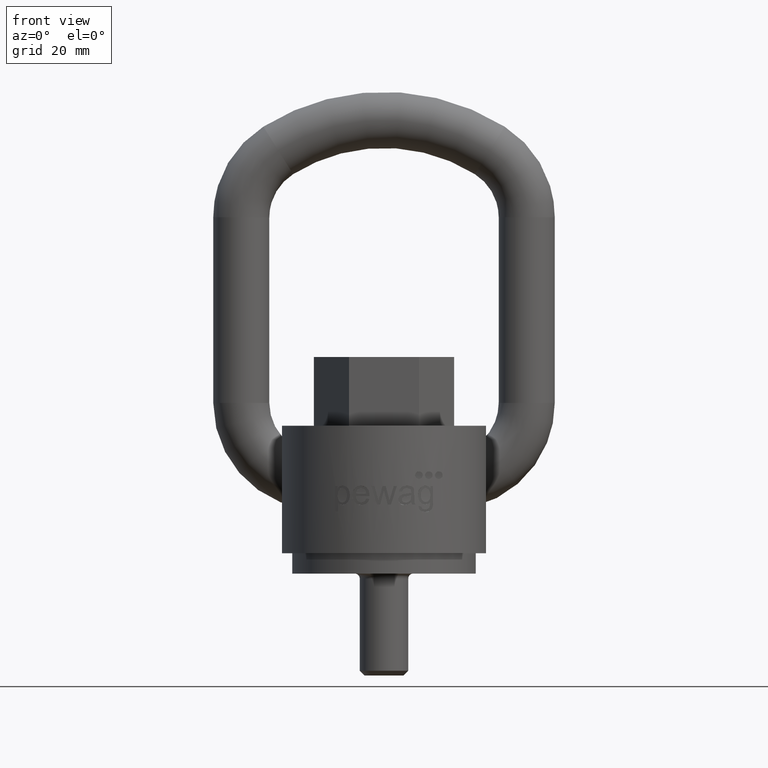
[diagram: clean part render]
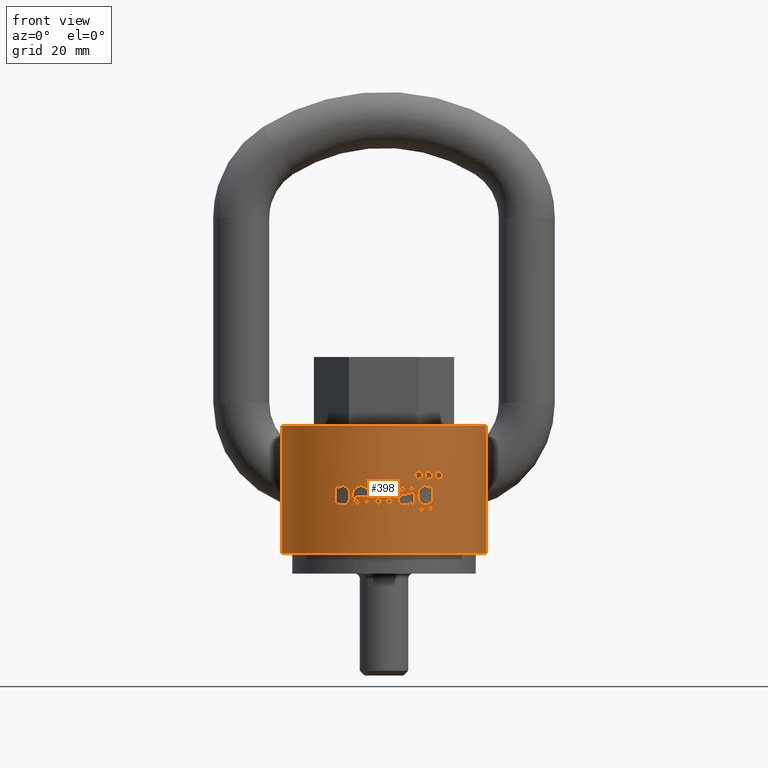
[diagram: same view with one face highlighted and labeled with its STEP entity id]
A machine part, front view. The second image highlights one B-rep face of the part: STEP entity #398.
In plain terms, the highlighted cylindrical surface (partial cylindrical patch) has radius 20 mm, axis along (0, 0, -1).
Its self-contained STEP definition (entity closure, byte-faithful):
#398=ADVANCED_FACE('',(#558,#559,#560,#561,#562,#563,#564,#565,#566),#527,
 .T.);
#527=CYLINDRICAL_SURFACE('',#2439,20.);
#545=ELLIPSE('',#2414,20.1552116083349,20.);
#546=ELLIPSE('',#2415,65.736381129688,20.);
#547=ELLIPSE('',#2417,77.1797237465781,20.);
#548=ELLIPSE('',#2419,78.6263607569451,20.);
#549=ELLIPSE('',#2421,67.0419076215237,20.);
#550=ELLIPSE('',#2423,74.2215042638997,20.);
#551=ELLIPSE('',#2424,80.7307963171635,20.);
#552=ELLIPSE('',#2425,75.1711480642551,20.);
#553=ELLIPSE('',#2427,79.0294785609175,20.);
#554=ELLIPSE('',#2429,69.6178658417018,20.);
#555=ELLIPSE('',#2432,20.2262363425178,20.);
#556=ELLIPSE('',#2433,20.1713467170009,20.);
#557=ELLIPSE('',#2434,20.2757128906475,20.);
#558=FACE_BOUND('',#617,.T.);
#559=FACE_BOUND('',#618,.T.);
#560=FACE_BOUND('',#619,.T.);
#561=FACE_BOUND('',#620,.T.);
#562=FACE_BOUND('',#621,.T.);
#563=FACE_BOUND('',#622,.T.);
#564=FACE_BOUND('',#623,.T.);
#565=FACE_BOUND('',#624,.T.);
#566=FACE_BOUND('',#625,.T.);
#617=EDGE_LOOP('',(#1112,#1113,#1114,#1115,#1116,#1117,#1118,#1119,#1120,
#1121));
#618=EDGE_LOOP('',(#1122,#1123,#1124,#1125,#1126,#1127,#1128,#1129,#1130));
#619=EDGE_LOOP('',(#1131,#1132,#1133,#1134,#1135,#1136,#1137,#1138,#1139,
#1140,#1141,#1142,#1143,#1144,#1145,#1146,#1147,#1148,#1149));
#620=EDGE_LOOP('',(#1150,#1151,#1152,#1153,#1154,#1155,#1156,#1157,#1158,
#1159,#1160,#1161,#1162,#1163,#1164,#1165,#1166));
#621=EDGE_LOOP('',(#1167,#1168,#1169,#1170,#1171,#1172,#1173,#1174,#1175,
#1176,#1177));
#622=EDGE_LOOP('',(#1178));
#623=EDGE_LOOP('',(#1179,#1180,#1181,#1182));
#624=EDGE_LOOP('',(#1183));
#625=EDGE_LOOP('',(#1184));
#779=LINE('',#3036,#905);
#780=LINE('',#3040,#906);
#781=LINE('',#3044,#907);
#782=LINE('',#3600,#908);
#783=LINE('',#3665,#909);
#784=LINE('',#3669,#910);
#905=VECTOR('',#2546,1.);
#906=VECTOR('',#2549,1.);
#907=VECTOR('',#2552,1.);
#908=VECTOR('',#2601,1.);
#909=VECTOR('',#2606,1.);
#910=VECTOR('',#2609,1.);
#1076=CIRCLE('',#2409,20.);
#1077=CIRCLE('',#2410,20.);
#1078=CIRCLE('',#2411,20.);
#1079=CIRCLE('',#2412,20.);
#1080=CIRCLE('',#2413,20.);
#1081=CIRCLE('',#2416,20.);
#1082=CIRCLE('',#2418,20.);
#1083=CIRCLE('',#2420,20.);
#1084=CIRCLE('',#2422,20.);
#1085=CIRCLE('',#2426,20.);
#1086=CIRCLE('',#2428,20.);
#1087=CIRCLE('',#2430,20.);
#1088=CIRCLE('',#2431,20.);
#1089=CIRCLE('',#2435,20.);
#1090=CIRCLE('',#2436,20.);
#1091=CIRCLE('',#2437,20.);
#1092=CIRCLE('',#2438,20.);
#1112=ORIENTED_EDGE('',*,*,#1930,.F.);
#1113=ORIENTED_EDGE('',*,*,#1931,.F.);
#1114=ORIENTED_EDGE('',*,*,#1932,.F.);
#1115=ORIENTED_EDGE('',*,*,#1933,.F.);
#1116=ORIENTED_EDGE('',*,*,#1934,.F.);
#1117=ORIENTED_EDGE('',*,*,#1935,.F.);
#1118=ORIENTED_EDGE('',*,*,#1936,.F.);
#1119=ORIENTED_EDGE('',*,*,#1937,.F.);
#1120=ORIENTED_EDGE('',*,*,#1938,.F.);
#1121=ORIENTED_EDGE('',*,*,#1939,.F.);
#1122=ORIENTED_EDGE('',*,*,#1940,.F.);
#1123=ORIENTED_EDGE('',*,*,#1941,.F.);
#1124=ORIENTED_EDGE('',*,*,#1942,.F.);
#1125=ORIENTED_EDGE('',*,*,#1943,.F.);
#1126=ORIENTED_EDGE('',*,*,#1944,.F.);
#1127=ORIENTED_EDGE('',*,*,#1945,.F.);
#1128=ORIENTED_EDGE('',*,*,#1946,.F.);
#1129=ORIENTED_EDGE('',*,*,#1947,.F.);
#1130=ORIENTED_EDGE('',*,*,#1948,.F.);
#1131=ORIENTED_EDGE('',*,*,#1949,.F.);
#1132=ORIENTED_EDGE('',*,*,#1950,.F.);
#1133=ORIENTED_EDGE('',*,*,#1951,.F.);
#1134=ORIENTED_EDGE('',*,*,#1952,.F.);
#1135=ORIENTED_EDGE('',*,*,#1953,.F.);
#1136=ORIENTED_EDGE('',*,*,#1954,.F.);
#1137=ORIENTED_EDGE('',*,*,#1955,.F.);
#1138=ORIENTED_EDGE('',*,*,#1956,.F.);
#1139=ORIENTED_EDGE('',*,*,#1957,.F.);
#1140=ORIENTED_EDGE('',*,*,#1958,.F.);
#1141=ORIENTED_EDGE('',*,*,#1959,.F.);
#1142=ORIENTED_EDGE('',*,*,#1960,.F.);
#1143=ORIENTED_EDGE('',*,*,#1961,.F.);
#1144=ORIENTED_EDGE('',*,*,#1962,.F.);
#1145=ORIENTED_EDGE('',*,*,#1963,.F.);
#1146=ORIENTED_EDGE('',*,*,#1964,.F.);
#1147=ORIENTED_EDGE('',*,*,#1965,.F.);
#1148=ORIENTED_EDGE('',*,*,#1966,.F.);
#1149=ORIENTED_EDGE('',*,*,#1967,.F.);
#1150=ORIENTED_EDGE('',*,*,#1968,.F.);
#1151=ORIENTED_EDGE('',*,*,#1969,.F.);
#1152=ORIENTED_EDGE('',*,*,#1970,.F.);
#1153=ORIENTED_EDGE('',*,*,#1971,.F.);
#1154=ORIENTED_EDGE('',*,*,#1972,.F.);
#1155=ORIENTED_EDGE('',*,*,#1973,.F.);
#1156=ORIENTED_EDGE('',*,*,#1974,.F.);
#1157=ORIENTED_EDGE('',*,*,#1975,.F.);
#1158=ORIENTED_EDGE('',*,*,#1976,.F.);
#1159=ORIENTED_EDGE('',*,*,#1977,.F.);
#1160=ORIENTED_EDGE('',*,*,#1978,.F.);
#1161=ORIENTED_EDGE('',*,*,#1979,.F.);
#1162=ORIENTED_EDGE('',*,*,#1980,.F.);
#1163=ORIENTED_EDGE('',*,*,#1981,.F.);
#1164=ORIENTED_EDGE('',*,*,#1982,.F.);
#1165=ORIENTED_EDGE('',*,*,#1983,.F.);
#1166=ORIENTED_EDGE('',*,*,#1984,.F.);
#1167=ORIENTED_EDGE('',*,*,#1985,.F.);
#1168=ORIENTED_EDGE('',*,*,#1986,.F.);
#1169=ORIENTED_EDGE('',*,*,#1987,.F.);
#1170=ORIENTED_EDGE('',*,*,#1988,.F.);
#1171=ORIENTED_EDGE('',*,*,#1989,.F.);
#1172=ORIENTED_EDGE('',*,*,#1990,.F.);
#1173=ORIENTED_EDGE('',*,*,#1991,.F.);
#1174=ORIENTED_EDGE('',*,*,#1992,.F.);
#1175=ORIENTED_EDGE('',*,*,#1993,.F.);
#1176=ORIENTED_EDGE('',*,*,#1994,.F.);
#1177=ORIENTED_EDGE('',*,*,#1995,.F.);
#1178=ORIENTED_EDGE('',*,*,#1996,.T.);
#1179=ORIENTED_EDGE('',*,*,#1997,.F.);
#1180=ORIENTED_EDGE('',*,*,#1998,.F.);
#1181=ORIENTED_EDGE('',*,*,#1999,.F.);
#1182=ORIENTED_EDGE('',*,*,#2000,.F.);
#1183=ORIENTED_EDGE('',*,*,#2001,.T.);
#1184=ORIENTED_EDGE('',*,*,#2002,.T.);
#1720=VERTEX_POINT('',#2992);
#1721=VERTEX_POINT('',#2993);
#1722=VERTEX_POINT('',#3004);
#1723=VERTEX_POINT('',#3033);
#1724=VERTEX_POINT('',#3035);
#1725=VERTEX_POINT('',#3037);
#1726=VERTEX_POINT('',#3039);
#1727=VERTEX_POINT('',#3041);
#1728=VERTEX_POINT('',#3043);
#1729=VERTEX_POINT('',#3045);
#1730=VERTEX_POINT('',#3048);
#1731=VERTEX_POINT('',#3049);
#1732=VERTEX_POINT('',#3060);
#1733=VERTEX_POINT('',#3077);
#1734=VERTEX_POINT('',#3088);
#1735=VERTEX_POINT('',#3090);
#1736=VERTEX_POINT('',#3101);
#1737=VERTEX_POINT('',#3118);
#1738=VERTEX_POINT('',#3150);
#1739=VERTEX_POINT('',#3162);
#1740=VERTEX_POINT('',#3163);
#1741=VERTEX_POINT('',#3165);
#1742=VERTEX_POINT('',#3167);
#1743=VERTEX_POINT('',#3232);
#1744=VERTEX_POINT('',#3243);
#1745=VERTEX_POINT('',#3245);
#1746=VERTEX_POINT('',#3247);
#1747=VERTEX_POINT('',#3249);
#1748=VERTEX_POINT('',#3251);
#1749=VERTEX_POINT('',#3253);
#1750=VERTEX_POINT('',#3255);
#1751=VERTEX_POINT('',#3257);
#1752=VERTEX_POINT('',#3259);
#1753=VERTEX_POINT('',#3261);
#1754=VERTEX_POINT('',#3263);
#1755=VERTEX_POINT('',#3274);
#1756=VERTEX_POINT('',#3276);
#1757=VERTEX_POINT('',#3278);
#1758=VERTEX_POINT('',#3281);
#1759=VERTEX_POINT('',#3282);
#1760=VERTEX_POINT('',#3293);
#1761=VERTEX_POINT('',#3325);
#1762=VERTEX_POINT('',#3336);
#1763=VERTEX_POINT('',#3338);
#1764=VERTEX_POINT('',#3349);
#1765=VERTEX_POINT('',#3360);
#1766=VERTEX_POINT('',#3371);
#1767=VERTEX_POINT('',#3382);
#1768=VERTEX_POINT('',#3393);
#1769=VERTEX_POINT('',#3404);
#1770=VERTEX_POINT('',#3406);
#1771=VERTEX_POINT('',#3417);
#1772=VERTEX_POINT('',#3431);
#1773=VERTEX_POINT('',#3442);
#1774=VERTEX_POINT('',#3453);
#1775=VERTEX_POINT('',#3474);
#1776=VERTEX_POINT('',#3475);
#1777=VERTEX_POINT('',#3495);
#1778=VERTEX_POINT('',#3509);
#1779=VERTEX_POINT('',#3511);
#1780=VERTEX_POINT('',#3522);
#1781=VERTEX_POINT('',#3536);
#1782=VERTEX_POINT('',#3550);
#1783=VERTEX_POINT('',#3597);
#1784=VERTEX_POINT('',#3599);
#1785=VERTEX_POINT('',#3601);
#1786=VERTEX_POINT('',#3661);
#1787=VERTEX_POINT('',#3663);
#1788=VERTEX_POINT('',#3664);
#1789=VERTEX_POINT('',#3666);
#1790=VERTEX_POINT('',#3668);
#1791=VERTEX_POINT('',#3728);
#1792=VERTEX_POINT('',#3787);
#1930=EDGE_CURVE('',#1720,#1721,#2234,.T.);
#1931=EDGE_CURVE('',#1722,#1720,#2235,.T.);
#1932=EDGE_CURVE('',#1723,#1722,#2236,.T.);
#1933=EDGE_CURVE('',#1724,#1723,#1076,.T.);
#1934=EDGE_CURVE('',#1725,#1724,#779,.T.);
#1935=EDGE_CURVE('',#1726,#1725,#1077,.T.);
#1936=EDGE_CURVE('',#1727,#1726,#780,.T.);
#1937=EDGE_CURVE('',#1728,#1727,#1078,.T.);
#1938=EDGE_CURVE('',#1729,#1728,#781,.T.);
#1939=EDGE_CURVE('',#1721,#1729,#1079,.T.);
#1940=EDGE_CURVE('',#1730,#1731,#1080,.T.);
#1941=EDGE_CURVE('',#1732,#1730,#2237,.T.);
#1942=EDGE_CURVE('',#1733,#1732,#2238,.T.);
#1943=EDGE_CURVE('',#1734,#1733,#2239,.T.);
#1944=EDGE_CURVE('',#1735,#1734,#545,.T.);
#1945=EDGE_CURVE('',#1736,#1735,#2240,.T.);
#1946=EDGE_CURVE('',#1737,#1736,#2241,.T.);
#1947=EDGE_CURVE('',#1738,#1737,#2242,.T.);
#1948=EDGE_CURVE('',#1731,#1738,#2243,.T.);
#1949=EDGE_CURVE('',#1739,#1740,#546,.T.);
#1950=EDGE_CURVE('',#1741,#1739,#1081,.T.);
#1951=EDGE_CURVE('',#1742,#1741,#547,.T.);
#1952=EDGE_CURVE('',#1743,#1742,#2244,.T.);
#1953=EDGE_CURVE('',#1744,#1743,#2245,.T.);
#1954=EDGE_CURVE('',#1745,#1744,#1082,.T.);
#1955=EDGE_CURVE('',#1746,#1745,#548,.T.);
#1956=EDGE_CURVE('',#1747,#1746,#1083,.T.);
#1957=EDGE_CURVE('',#1748,#1747,#549,.T.);
#1958=EDGE_CURVE('',#1749,#1748,#1084,.T.);
#1959=EDGE_CURVE('',#1750,#1749,#550,.T.);
#1960=EDGE_CURVE('',#1751,#1750,#551,.T.);
#1961=EDGE_CURVE('',#1752,#1751,#552,.T.);
#1962=EDGE_CURVE('',#1753,#1752,#1085,.T.);
#1963=EDGE_CURVE('',#1754,#1753,#553,.T.);
#1964=EDGE_CURVE('',#1755,#1754,#2246,.T.);
#1965=EDGE_CURVE('',#1756,#1755,#1086,.T.);
#1966=EDGE_CURVE('',#1757,#1756,#554,.T.);
#1967=EDGE_CURVE('',#1740,#1757,#1087,.T.);
#1968=EDGE_CURVE('',#1758,#1759,#1088,.T.);
#1969=EDGE_CURVE('',#1760,#1758,#2247,.T.);
#1970=EDGE_CURVE('',#1761,#1760,#2248,.T.);
#1971=EDGE_CURVE('',#1762,#1761,#2249,.T.);
#1972=EDGE_CURVE('',#1763,#1762,#555,.T.);
#1973=EDGE_CURVE('',#1764,#1763,#2250,.T.);
#1974=EDGE_CURVE('',#1765,#1764,#2251,.T.);
#1975=EDGE_CURVE('',#1766,#1765,#2252,.T.);
#1976=EDGE_CURVE('',#1767,#1766,#2253,.T.);
#1977=EDGE_CURVE('',#1768,#1767,#2254,.T.);
#1978=EDGE_CURVE('',#1769,#1768,#2255,.T.);
#1979=EDGE_CURVE('',#1770,#1769,#556,.T.);
#1980=EDGE_CURVE('',#1771,#1770,#2256,.T.);
#1981=EDGE_CURVE('',#1772,#1771,#2257,.T.);
#1982=EDGE_CURVE('',#1773,#1772,#2258,.T.);
#1983=EDGE_CURVE('',#1774,#1773,#2259,.T.);
#1984=EDGE_CURVE('',#1759,#1774,#2260,.T.);
#1985=EDGE_CURVE('',#1775,#1776,#2261,.T.);
#1986=EDGE_CURVE('',#1777,#1775,#2262,.T.);
#1987=EDGE_CURVE('',#1778,#1777,#2263,.T.);
#1988=EDGE_CURVE('',#1779,#1778,#557,.T.);
#1989=EDGE_CURVE('',#1780,#1779,#2264,.T.);
#1990=EDGE_CURVE('',#1781,#1780,#2265,.T.);
#1991=EDGE_CURVE('',#1782,#1781,#2266,.T.);
#1992=EDGE_CURVE('',#1783,#1782,#2267,.T.);
#1993=EDGE_CURVE('',#1784,#1783,#1089,.T.);
#1994=EDGE_CURVE('',#1785,#1784,#782,.T.);
#1995=EDGE_CURVE('',#1776,#1785,#1090,.T.);
#1996=EDGE_CURVE('',#1786,#1786,#2268,.T.);
#1997=EDGE_CURVE('',#1787,#1788,#1091,.T.);
#1998=EDGE_CURVE('',#1789,#1787,#783,.T.);
#1999=EDGE_CURVE('',#1790,#1789,#1092,.T.);
#2000=EDGE_CURVE('',#1788,#1790,#784,.T.);
#2001=EDGE_CURVE('',#1791,#1791,#2269,.T.);
#2002=EDGE_CURVE('',#1792,#1792,#2270,.T.);
#2234=B_SPLINE_CURVE_WITH_KNOTS('',3,(#2982,#2983,#2984,#2985,#2986,#2987,
#2988,#2989,#2990,#2991),.UNSPECIFIED.,.F.,.F.,(4,3,3,4),(0.,0.39165779774727,
0.694208532104586,1.),.UNSPECIFIED.);
#2235=B_SPLINE_CURVE_WITH_KNOTS('',3,(#2994,#2995,#2996,#2997,#2998,#2999,
#3000,#3001,#3002,#3003),.UNSPECIFIED.,.F.,.F.,(4,3,3,4),(0.,0.352238037569734,
0.705837311240728,1.),.UNSPECIFIED.);
#2236=B_SPLINE_CURVE_WITH_KNOTS('',3,(#3005,#3006,#3007,#3008,#3009,#3010,
#3011,#3012,#3013,#3014,#3015,#3016,#3017,#3018,#3019,#3020,#3021,#3022,
#3023,#3024,#3025,#3026,#3027,#3028,#3029,#3030,#3031,#3032),
 .UNSPECIFIED.,.F.,.F.,(4,3,3,3,3,3,3,3,3,4),(0.,0.0905248933953073,0.168768946938945,
0.262343208688421,0.356493992292628,0.443257919153381,0.542905133014072,
0.677139243652401,0.866918457224588,1.),.UNSPECIFIED.);
#2237=B_SPLINE_CURVE_WITH_KNOTS('',3,(#3050,#3051,#3052,#3053,#3054,#3055,
#3056,#3057,#3058,#3059),.UNSPECIFIED.,.F.,.F.,(4,3,3,4),(0.,0.247240170800066,
0.66384114371932,1.),.UNSPECIFIED.);
#2238=B_SPLINE_CURVE_WITH_KNOTS('',3,(#3061,#3062,#3063,#3064,#3065,#3066,
#3067,#3068,#3069,#3070,#3071,#3072,#3073,#3074,#3075,#3076),
 .UNSPECIFIED.,.F.,.F.,(4,3,3,3,3,4),(0.,0.198766169573322,0.395634693446516,
0.63496904215586,0.9069767555509,1.),.UNSPECIFIED.);
#2239=B_SPLINE_CURVE_WITH_KNOTS('',3,(#3078,#3079,#3080,#3081,#3082,#3083,
#3084,#3085,#3086,#3087),.UNSPECIFIED.,.F.,.F.,(4,3,3,4),(0.,0.291582744666726,
0.583827807706868,1.),.UNSPECIFIED.);
#2240=B_SPLINE_CURVE_WITH_KNOTS('',3,(#3091,#3092,#3093,#3094,#3095,#3096,
#3097,#3098,#3099,#3100),.UNSPECIFIED.,.F.,.F.,(4,3,3,4),(0.,0.279743626133198,
0.746666449623446,1.),.UNSPECIFIED.);
#2241=B_SPLINE_CURVE_WITH_KNOTS('',3,(#3102,#3103,#3104,#3105,#3106,#3107,
#3108,#3109,#3110,#3111,#3112,#3113,#3114,#3115,#3116,#3117),
 .UNSPECIFIED.,.F.,.F.,(4,3,3,3,3,4),(0.,0.203862272098564,0.406656114901403,
0.720007632425518,0.924503863407852,1.),.UNSPECIFIED.);
#2242=B_SPLINE_CURVE_WITH_KNOTS('',3,(#3119,#3120,#3121,#3122,#3123,#3124,
#3125,#3126,#3127,#3128,#3129,#3130,#3131,#3132,#3133,#3134,#3135,#3136,
#3137,#3138,#3139,#3140,#3141,#3142,#3143,#3144,#3145,#3146,#3147,#3148,
#3149),.UNSPECIFIED.,.F.,.F.,(4,3,3,3,3,3,3,3,3,3,4),(0.,0.103512007964936,
0.193899697201353,0.278195108082369,0.377585673179039,0.459701063740596,
0.54173696660687,0.628790824986067,0.758833824520311,0.895694136286065,
1.),.UNSPECIFIED.);
#2243=B_SPLINE_CURVE_WITH_KNOTS('',3,(#3151,#3152,#3153,#3154,#3155,#3156,
#3157,#3158,#3159,#3160),.UNSPECIFIED.,.F.,.F.,(4,3,3,4),(0.,0.326762048751427,
0.655781069521525,1.),.UNSPECIFIED.);
#2244=B_SPLINE_CURVE_WITH_KNOTS('',3,(#3168,#3169,#3170,#3171,#3172,#3173,
#3174,#3175,#3176,#3177,#3178,#3179,#3180,#3181,#3182,#3183,#3184,#3185,
#3186,#3187,#3188,#3189,#3190,#3191,#3192,#3193,#3194,#3195,#3196,#3197,
#3198,#3199,#3200,#3201,#3202,#3203,#3204,#3205,#3206,#3207,#3208,#3209,
#3210,#3211,#3212,#3213,#3214,#3215,#3216,#3217,#3218,#3219,#3220,#3221,
#3222,#3223,#3224,#3225,#3226,#3227,#3228,#3229,#3230,#3231),
 .UNSPECIFIED.,.F.,.F.,(4,3,3,3,3,3,3,3,3,3,3,3,3,3,3,3,3,3,3,3,3,4),(0.,
0.49955331586518,0.749371457656566,0.834029702780173,0.889946163445601,
0.926899980438567,0.951339488322621,0.967517620447397,0.978239999313731,
0.985357926739098,0.990093338017977,0.993253012252832,0.995369807961908,
0.996795785887985,0.997763616318893,0.998427273433968,0.998888982349348,
0.999371387650653,0.999590041158731,0.999773233031206,0.999908554282075,
1.),.UNSPECIFIED.);
#2245=B_SPLINE_CURVE_WITH_KNOTS('',3,(#3233,#3234,#3235,#3236,#3237,#3238,
#3239,#3240,#3241,#3242),.UNSPECIFIED.,.F.,.F.,(4,3,3,4),(0.,0.133710786362405,
0.66225942820559,1.),.UNSPECIFIED.);
#2246=B_SPLINE_CURVE_WITH_KNOTS('',3,(#3264,#3265,#3266,#3267,#3268,#3269,
#3270,#3271,#3272,#3273),.UNSPECIFIED.,.F.,.F.,(4,3,3,4),(0.,0.284451124598536,
0.642221045653087,1.),.UNSPECIFIED.);
#2247=B_SPLINE_CURVE_WITH_KNOTS('',3,(#3283,#3284,#3285,#3286,#3287,#3288,
#3289,#3290,#3291,#3292),.UNSPECIFIED.,.F.,.F.,(4,3,3,4),(0.,0.298107772476784,
0.596459384136436,1.),.UNSPECIFIED.);
#2248=B_SPLINE_CURVE_WITH_KNOTS('',3,(#3294,#3295,#3296,#3297,#3298,#3299,
#3300,#3301,#3302,#3303,#3304,#3305,#3306,#3307,#3308,#3309,#3310,#3311,
#3312,#3313,#3314,#3315,#3316,#3317,#3318,#3319,#3320,#3321,#3322,#3323,
#3324),.UNSPECIFIED.,.F.,.F.,(4,3,3,3,3,3,3,3,3,3,4),(0.,0.0780122411292472,
0.156314956137168,0.252221628366136,0.327487061806901,0.402822724376452,
0.479618288086518,0.589759700125946,0.751045473062078,0.909884427350105,
1.),.UNSPECIFIED.);
#2249=B_SPLINE_CURVE_WITH_KNOTS('',3,(#3326,#3327,#3328,#3329,#3330,#3331,
#3332,#3333,#3334,#3335),.UNSPECIFIED.,.F.,.F.,(4,3,3,4),(0.,0.336609162967316,
0.658853350552496,1.),.UNSPECIFIED.);
#2250=B_SPLINE_CURVE_WITH_KNOTS('',3,(#3339,#3340,#3341,#3342,#3343,#3344,
#3345,#3346,#3347,#3348),.UNSPECIFIED.,.F.,.F.,(4,3,3,4),(0.,0.296612768273012,
0.593035536686834,1.),.UNSPECIFIED.);
#2251=B_SPLINE_CURVE_WITH_KNOTS('',3,(#3350,#3351,#3352,#3353,#3354,#3355,
#3356,#3357,#3358,#3359),.UNSPECIFIED.,.F.,.F.,(4,3,3,4),(0.,0.354196373045421,
0.676989757518111,1.),.UNSPECIFIED.);
#2252=B_SPLINE_CURVE_WITH_KNOTS('',3,(#3361,#3362,#3363,#3364,#3365,#3366,
#3367,#3368,#3369,#3370),.UNSPECIFIED.,.F.,.F.,(4,3,3,4),(0.,0.284062316950151,
0.568435846262544,1.),.UNSPECIFIED.);
#2253=B_SPLINE_CURVE_WITH_KNOTS('',3,(#3372,#3373,#3374,#3375,#3376,#3377,
#3378,#3379,#3380,#3381),.UNSPECIFIED.,.F.,.F.,(4,3,3,4),(0.,0.294807138526083,
0.590298925498027,1.),.UNSPECIFIED.);
#2254=B_SPLINE_CURVE_WITH_KNOTS('',3,(#3383,#3384,#3385,#3386,#3387,#3388,
#3389,#3390,#3391,#3392),.UNSPECIFIED.,.F.,.F.,(4,3,3,4),(0.,0.278855867610502,
0.735722394139047,1.),.UNSPECIFIED.);
#2255=B_SPLINE_CURVE_WITH_KNOTS('',3,(#3394,#3395,#3396,#3397,#3398,#3399,
#3400,#3401,#3402,#3403),.UNSPECIFIED.,.F.,.F.,(4,3,3,4),(0.,0.324752376652683,
0.76867392546095,1.),.UNSPECIFIED.);
#2256=B_SPLINE_CURVE_WITH_KNOTS('',3,(#3407,#3408,#3409,#3410,#3411,#3412,
#3413,#3414,#3415,#3416),.UNSPECIFIED.,.F.,.F.,(4,3,3,4),(0.,0.27674671990418,
0.659623398338772,1.),.UNSPECIFIED.);
#2257=B_SPLINE_CURVE_WITH_KNOTS('',3,(#3418,#3419,#3420,#3421,#3422,#3423,
#3424,#3425,#3426,#3427,#3428,#3429,#3430),.UNSPECIFIED.,.F.,.F.,(4,3,3,
3,4),(0.,0.169752759976957,0.616422555181217,0.880352645211546,1.),
 .UNSPECIFIED.);
#2258=B_SPLINE_CURVE_WITH_KNOTS('',3,(#3432,#3433,#3434,#3435,#3436,#3437,
#3438,#3439,#3440,#3441),.UNSPECIFIED.,.F.,.F.,(4,3,3,4),(0.,0.260453290197966,
0.651117404602206,1.),.UNSPECIFIED.);
#2259=B_SPLINE_CURVE_WITH_KNOTS('',3,(#3443,#3444,#3445,#3446,#3447,#3448,
#3449,#3450,#3451,#3452),.UNSPECIFIED.,.F.,.F.,(4,3,3,4),(0.,0.285271385879727,
0.641607229579715,1.),.UNSPECIFIED.);
#2260=B_SPLINE_CURVE_WITH_KNOTS('',3,(#3454,#3455,#3456,#3457,#3458,#3459,
#3460,#3461,#3462,#3463),.UNSPECIFIED.,.F.,.F.,(4,3,3,4),(0.,0.264702455054189,
0.529532191004726,1.),.UNSPECIFIED.);
#2261=B_SPLINE_CURVE_WITH_KNOTS('',3,(#3464,#3465,#3466,#3467,#3468,#3469,
#3470,#3471,#3472,#3473),.UNSPECIFIED.,.F.,.F.,(4,3,3,4),(0.,0.146567078125611,
0.470503150225428,1.),.UNSPECIFIED.);
#2262=B_SPLINE_CURVE_WITH_KNOTS('',3,(#3476,#3477,#3478,#3479,#3480,#3481,
#3482,#3483,#3484,#3485,#3486,#3487,#3488,#3489,#3490,#3491,#3492,#3493,
#3494),.UNSPECIFIED.,.F.,.F.,(4,3,3,3,3,3,4),(0.,0.191184255901723,0.449337348737318,
0.671797294418071,0.828129636679727,0.957888930864525,1.),.UNSPECIFIED.);
#2263=B_SPLINE_CURVE_WITH_KNOTS('',3,(#3496,#3497,#3498,#3499,#3500,#3501,
#3502,#3503,#3504,#3505,#3506,#3507,#3508),.UNSPECIFIED.,.F.,.F.,(4,3,3,
3,4),(0.,0.40104347548382,0.633320924333616,0.866741825313148,1.),
 .UNSPECIFIED.);
#2264=B_SPLINE_CURVE_WITH_KNOTS('',3,(#3512,#3513,#3514,#3515,#3516,#3517,
#3518,#3519,#3520,#3521),.UNSPECIFIED.,.F.,.F.,(4,3,3,4),(0.,0.256741034377321,
0.614734922498136,1.),.UNSPECIFIED.);
#2265=B_SPLINE_CURVE_WITH_KNOTS('',3,(#3523,#3524,#3525,#3526,#3527,#3528,
#3529,#3530,#3531,#3532,#3533,#3534,#3535),.UNSPECIFIED.,.F.,.F.,(4,3,3,
3,4),(0.,0.199350171071176,0.498071015390838,0.843112996930394,1.),
 .UNSPECIFIED.);
#2266=B_SPLINE_CURVE_WITH_KNOTS('',3,(#3537,#3538,#3539,#3540,#3541,#3542,
#3543,#3544,#3545,#3546,#3547,#3548,#3549),.UNSPECIFIED.,.F.,.F.,(4,3,3,
3,4),(0.,0.368966348729248,0.743470048428446,0.957910841717736,1.),
 .UNSPECIFIED.);
#2267=B_SPLINE_CURVE_WITH_KNOTS('',3,(#3551,#3552,#3553,#3554,#3555,#3556,
#3557,#3558,#3559,#3560,#3561,#3562,#3563,#3564,#3565,#3566,#3567,#3568,
#3569,#3570,#3571,#3572,#3573,#3574,#3575,#3576,#3577,#3578,#3579,#3580,
#3581,#3582,#3583,#3584,#3585,#3586,#3587,#3588,#3589,#3590,#3591,#3592,
#3593,#3594,#3595,#3596),.UNSPECIFIED.,.F.,.F.,(4,3,3,3,3,3,3,3,3,3,3,3,
3,3,3,4),(0.,0.069345536697195,0.131181607699317,0.203672485315946,0.260879031244603,
0.31821184954615,0.394648743714365,0.490824651035643,0.590098287636925,
0.666939584909766,0.731168834752853,0.796085378360999,0.866356182898312,
0.922400773229942,0.978520980008003,1.),.UNSPECIFIED.);
#2268=B_SPLINE_CURVE_WITH_KNOTS('',3,(#3603,#3604,#3605,#3606,#3607,#3608,
#3609,#3610,#3611,#3612,#3613,#3614,#3615,#3616,#3617,#3618,#3619,#3620,
#3621,#3622,#3623,#3624,#3625,#3626,#3627,#3628,#3629,#3630,#3631,#3632,
#3633,#3634,#3635,#3636,#3637,#3638,#3639,#3640,#3641,#3642,#3643,#3644,
#3645,#3646,#3647,#3648,#3649,#3650,#3651,#3652,#3653,#3654,#3655,#3656,
#3657,#3658,#3659,#3660),.UNSPECIFIED.,.T.,.F.,(1,3,3,3,3,3,3,3,3,3,3,3,
3,3,3,3,3,3,3,3,3,1),(-0.0367073868415115,0.,0.0609914840100653,0.122231249399373,
0.179301292083769,0.230755369736958,0.278391120314946,0.324878189726593,
0.372681240418366,0.423792491215215,0.479527479500681,0.539959743675116,
0.603004205015682,0.664124531326788,0.718757726555902,0.766536662648835,
0.811206380762686,0.857057487616179,0.907225610016431,0.963292613158488,
1.,1.06099148401007),.UNSPECIFIED.);
#2269=B_SPLINE_CURVE_WITH_KNOTS('',3,(#3670,#3671,#3672,#3673,#3674,#3675,
#3676,#3677,#3678,#3679,#3680,#3681,#3682,#3683,#3684,#3685,#3686,#3687,
#3688,#3689,#3690,#3691,#3692,#3693,#3694,#3695,#3696,#3697,#3698,#3699,
#3700,#3701,#3702,#3703,#3704,#3705,#3706,#3707,#3708,#3709,#3710,#3711,
#3712,#3713,#3714,#3715,#3716,#3717,#3718,#3719,#3720,#3721,#3722,#3723,
#3724,#3725,#3726,#3727),.UNSPECIFIED.,.T.,.F.,(1,3,3,3,3,3,3,3,3,3,3,3,
3,3,3,3,3,3,3,3,3,1),(-0.0367197482967889,0.,0.0576245706939593,0.115380338516391,
0.170999496159539,0.223565690324242,0.27392026441015,0.323453498183326,
0.373593188642528,0.425570256117132,0.480210313262636,0.537583476956387,
0.596550106951988,0.654679211305307,0.709389457177732,0.759995746809849,
0.808271178746392,0.856951409014805,0.908279432979371,0.963280251703211,
1.,1.05762457069396),.UNSPECIFIED.);
#2270=B_SPLINE_CURVE_WITH_KNOTS('',3,(#3729,#3730,#3731,#3732,#3733,#3734,
#3735,#3736,#3737,#3738,#3739,#3740,#3741,#3742,#3743,#3744,#3745,#3746,
#3747,#3748,#3749,#3750,#3751,#3752,#3753,#3754,#3755,#3756,#3757,#3758,
#3759,#3760,#3761,#3762,#3763,#3764,#3765,#3766,#3767,#3768,#3769,#3770,
#3771,#3772,#3773,#3774,#3775,#3776,#3777,#3778,#3779,#3780,#3781,#3782,
#3783,#3784,#3785,#3786),.UNSPECIFIED.,.T.,.F.,(1,3,3,3,3,3,3,3,3,3,3,3,
3,3,3,3,3,3,3,3,3,1),(-0.065995406742673,0.,0.0748415571720532,0.14155922398964,
0.18940613917509,0.237532672015934,0.281312267162052,0.323847856577257,
0.368697963810674,0.418673756299008,0.475805103754148,0.540469776596695,
0.609516497803689,0.662909236118814,0.70788995434646,0.75317491781791,0.793903464076128,
0.834776206969874,0.880423710865827,0.934004593257327,1.,1.07484155717205),
 .UNSPECIFIED.);
#2409=AXIS2_PLACEMENT_3D('',#3034,#2544,#2545);
#2410=AXIS2_PLACEMENT_3D('',#3038,#2547,#2548);
#2411=AXIS2_PLACEMENT_3D('',#3042,#2550,#2551);
#2412=AXIS2_PLACEMENT_3D('',#3046,#2553,#2554);
#2413=AXIS2_PLACEMENT_3D('',#3047,#2555,#2556);
#2414=AXIS2_PLACEMENT_3D('',#3089,#2557,#2558);
#2415=AXIS2_PLACEMENT_3D('',#3161,#2559,#2560);
#2416=AXIS2_PLACEMENT_3D('',#3164,#2561,#2562);
#2417=AXIS2_PLACEMENT_3D('',#3166,#2563,#2564);
#2418=AXIS2_PLACEMENT_3D('',#3244,#2565,#2566);
#2419=AXIS2_PLACEMENT_3D('',#3246,#2567,#2568);
#2420=AXIS2_PLACEMENT_3D('',#3248,#2569,#2570);
#2421=AXIS2_PLACEMENT_3D('',#3250,#2571,#2572);
#2422=AXIS2_PLACEMENT_3D('',#3252,#2573,#2574);
#2423=AXIS2_PLACEMENT_3D('',#3254,#2575,#2576);
#2424=AXIS2_PLACEMENT_3D('',#3256,#2577,#2578);
#2425=AXIS2_PLACEMENT_3D('',#3258,#2579,#2580);
#2426=AXIS2_PLACEMENT_3D('',#3260,#2581,#2582);
#2427=AXIS2_PLACEMENT_3D('',#3262,#2583,#2584);
#2428=AXIS2_PLACEMENT_3D('',#3275,#2585,#2586);
#2429=AXIS2_PLACEMENT_3D('',#3277,#2587,#2588);
#2430=AXIS2_PLACEMENT_3D('',#3279,#2589,#2590);
#2431=AXIS2_PLACEMENT_3D('',#3280,#2591,#2592);
#2432=AXIS2_PLACEMENT_3D('',#3337,#2593,#2594);
#2433=AXIS2_PLACEMENT_3D('',#3405,#2595,#2596);
#2434=AXIS2_PLACEMENT_3D('',#3510,#2597,#2598);
#2435=AXIS2_PLACEMENT_3D('',#3598,#2599,#2600);
#2436=AXIS2_PLACEMENT_3D('',#3602,#2602,#2603);
#2437=AXIS2_PLACEMENT_3D('',#3662,#2604,#2605);
#2438=AXIS2_PLACEMENT_3D('',#3667,#2607,#2608);
#2439=AXIS2_PLACEMENT_3D('',#3788,#2610,#2611);
#2544=DIRECTION('',(0.,0.,1.));
#2545=DIRECTION('',(-1.,0.,0.));
#2546=DIRECTION('',(0.,0.,1.));
#2547=DIRECTION('',(0.,0.,1.));
#2548=DIRECTION('',(-1.,0.,0.));
#2549=DIRECTION('',(0.,0.,-1.));
#2550=DIRECTION('',(0.,0.,-1.));
#2551=DIRECTION('',(1.,0.,0.));
#2552=DIRECTION('',(0.,0.,1.));
#2553=DIRECTION('',(0.,0.,-1.));
#2554=DIRECTION('',(1.,0.,0.));
#2555=DIRECTION('',(0.,0.,1.));
#2556=DIRECTION('',(-1.,0.,0.));
#2557=DIRECTION('',(-0.123864170013731,0.,-0.992299182397532));
#2558=DIRECTION('',(0.992299182397532,0.,-0.123864170013731));
#2559=DIRECTION('',(-0.952593648183112,0.,0.304245528218887));
#2560=DIRECTION('',(-0.304245528218887,0.,-0.952593648183112));
#2561=DIRECTION('',(0.,0.,1.));
#2562=DIRECTION('',(-1.,0.,0.));
#2563=DIRECTION('',(0.965840998800877,0.,0.259135418334362));
#2564=DIRECTION('',(0.259135418334362,0.,-0.965840998800877));
#2565=DIRECTION('',(0.,0.,1.));
#2566=DIRECTION('',(-1.,0.,0.));
#2567=DIRECTION('',(-0.96710760287855,0.,0.254367616756743));
#2568=DIRECTION('',(-0.254367616756743,0.,-0.96710760287855));
#2569=DIRECTION('',(0.,0.,1.));
#2570=DIRECTION('',(-1.,0.,0.));
#2571=DIRECTION('',(0.954465641275027,0.,0.298320866895784));
#2572=DIRECTION('',(0.298320866895784,0.,-0.954465641275027));
#2573=DIRECTION('',(0.,0.,-1.));
#2574=DIRECTION('',(1.,0.,0.));
#2575=DIRECTION('',(-0.963010551756508,0.,-0.269463684391098));
#2576=DIRECTION('',(0.269463684391098,0.,-0.963010551756508));
#2577=DIRECTION('',(0.968827338219047,0.,-0.247736934507953));
#2578=DIRECTION('',(-0.247736934507953,0.,-0.968827338219046));
#2579=DIRECTION('',(0.963956601090742,0.,-0.266059525696007));
#2580=DIRECTION('',(-0.266059525696007,0.,-0.963956601090742));
#2581=DIRECTION('',(0.,0.,-1.));
#2582=DIRECTION('',(1.,0.,0.));
#2583=DIRECTION('',(-0.967447937590639,0.,-0.253070124771019));
#2584=DIRECTION('',(0.253070124771019,0.,-0.967447937590639));
#2585=DIRECTION('',(0.,0.,-1.));
#2586=DIRECTION('',(1.,0.,0.));
#2587=DIRECTION('',(0.957845874951684,0.,-0.287282578375446));
#2588=DIRECTION('',(-0.287282578375446,0.,-0.957845874951683));
#2589=DIRECTION('',(0.,0.,-1.));
#2590=DIRECTION('',(1.,0.,0.));
#2591=DIRECTION('',(0.,0.,1.));
#2592=DIRECTION('',(-1.,0.,0.));
#2593=DIRECTION('',(0.149149158822098,0.,-0.988814708842188));
#2594=DIRECTION('',(-0.988814708842188,0.,-0.149149158822098));
#2595=DIRECTION('',(0.130065224599904,0.,0.991505439899236));
#2596=DIRECTION('',(0.991505439899236,0.,-0.130065224599904));
#2597=DIRECTION('',(-0.164351632031852,0.,-0.986401815209434));
#2598=DIRECTION('',(0.986401815209434,0.,-0.164351632031852));
#2599=DIRECTION('',(0.,0.,-1.));
#2600=DIRECTION('',(1.,0.,0.));
#2601=DIRECTION('',(0.,0.,-1.));
#2602=DIRECTION('',(0.,0.,-1.));
#2603=DIRECTION('',(1.,0.,0.));
#2604=DIRECTION('',(0.,1.14897503733909E-16,-1.));
#2605=DIRECTION('',(0.,-1.,-1.14897503733909E-16));
#2606=DIRECTION('',(0.,0.,-1.));
#2607=DIRECTION('',(0.,3.26574604254958E-16,1.));
#2608=DIRECTION('',(0.,1.,-3.46944695195361E-16));
#2609=DIRECTION('',(0.,0.,1.));
#2610=DIRECTION('',(0.,0.,-1.));
#2611=DIRECTION('',(-1.,0.,0.));
#2982=CARTESIAN_POINT('',(-8.12374310602427,-21.2757981480242,13.2254348938347));
#2983=CARTESIAN_POINT('',(-8.27187566192475,-21.209952004396,13.2254348938347));
#2984=CARTESIAN_POINT('',(-8.422192142958,-21.1408361141305,13.2024194810515));
#2985=CARTESIAN_POINT('',(-8.5600158613295,-21.0755671682464,13.1474326089296));
#2986=CARTESIAN_POINT('',(-8.66681381905012,-21.0249910395122,13.1048239366818));
#2987=CARTESIAN_POINT('',(-8.76820175961513,-20.9757644410083,13.0416314440236));
#2988=CARTESIAN_POINT('',(-8.85545366440093,-20.9326780040698,12.9621964921136));
#2989=CARTESIAN_POINT('',(-8.94378631623018,-20.8890578763259,12.8817776179656));
#2990=CARTESIAN_POINT('',(-9.01983119490044,-20.8506991444404,12.7832743622954));
#2991=CARTESIAN_POINT('',(-9.08165332313905,-20.819191140967,12.6767012023535));
#2992=CARTESIAN_POINT('',(-8.12374310602427,-21.2757981480242,13.2254348938347));
#2993=CARTESIAN_POINT('',(-9.08165332313905,-20.819191140967,12.6767012023535));
#2994=CARTESIAN_POINT('',(-7.08047455273094,-21.7047288167493,12.7086786902021));
#2995=CARTESIAN_POINT('',(-7.16801998050911,-21.6715894336732,12.8263099876498));
#2996=CARTESIAN_POINT('',(-7.27338573655384,-21.630993397977,12.931684528595));
#2997=CARTESIAN_POINT('',(-7.39112442433005,-21.5841674482359,13.0125824556781));
#2998=CARTESIAN_POINT('',(-7.50920847336518,-21.5372041445863,13.0937176795281));
#2999=CARTESIAN_POINT('',(-7.64249210614541,-21.48280080666,13.1518430265585));
#3000=CARTESIAN_POINT('',(-7.77792754119018,-21.4256300615202,13.1853253787726));
#3001=CARTESIAN_POINT('',(-7.8914121928613,-21.3777253008804,13.2133810576789));
#3002=CARTESIAN_POINT('',(-8.008298658276,-21.3271141578054,13.2254348938347));
#3003=CARTESIAN_POINT('',(-8.12374310602427,-21.2757981480242,13.2254348938347));
#3004=CARTESIAN_POINT('',(-7.08047455273094,-21.7047288167493,12.7086786902021));
#3005=CARTESIAN_POINT('',(-9.02830436302746,-20.8462802939027,9.90361345612689));
#3006=CARTESIAN_POINT('',(-8.94025347877149,-20.890824600582,9.77798474992074));
#3007=CARTESIAN_POINT('',(-8.83028149204926,-20.9456257941354,9.6665272340031));
#3008=CARTESIAN_POINT('',(-8.70502403314187,-21.0061810660235,9.58802020671602));
#3009=CARTESIAN_POINT('',(-8.59635492620506,-21.0587167582992,9.51991018262668));
#3010=CARTESIAN_POINT('',(-8.47345398281009,-21.1168252806146,9.47494007009142));
#3011=CARTESIAN_POINT('',(-8.34892323490291,-21.1740331467096,9.45426878495177));
#3012=CARTESIAN_POINT('',(-8.1998644553391,-21.242508883384,9.42952600787291));
#3013=CARTESIAN_POINT('',(-8.04404798023143,-21.3117412952244,9.43502806875174));
#3014=CARTESIAN_POINT('',(-7.89425982267477,-21.3760894058586,9.46572790277944));
#3015=CARTESIAN_POINT('',(-7.74400210032558,-21.4406392387632,9.49652397646608));
#3016=CARTESIAN_POINT('',(-7.59562364287898,-21.5020714366172,9.55783945237158));
#3017=CARTESIAN_POINT('',(-7.4639417591591,-21.5550417249836,9.64471000122712));
#3018=CARTESIAN_POINT('',(-7.34198754566809,-21.6040989656124,9.72516320528172));
#3019=CARTESIAN_POINT('',(-7.23128589908192,-21.6472257089457,9.82849204519834));
#3020=CARTESIAN_POINT('',(-7.13545776282131,-21.6838230165829,9.94351276708576));
#3021=CARTESIAN_POINT('',(-7.02573724569377,-21.7257259031058,10.0752082542186));
#3022=CARTESIAN_POINT('',(-6.93503951926199,-21.7592702955909,10.2280525561253));
#3023=CARTESIAN_POINT('',(-6.86866183805682,-21.7835429180552,10.3897404911897));
#3024=CARTESIAN_POINT('',(-6.77949822551603,-21.8161477735649,10.6069321756963));
#3025=CARTESIAN_POINT('',(-6.73045146950884,-21.8335200838898,10.8445660484911));
#3026=CARTESIAN_POINT('',(-6.71034100005109,-21.8406826750793,11.0806374794788));
#3027=CARTESIAN_POINT('',(-6.68200070283139,-21.8507764207077,11.413316661003));
#3028=CARTESIAN_POINT('',(-6.69912141132326,-21.8448938279165,11.7581913855435));
#3029=CARTESIAN_POINT('',(-6.7845706307139,-21.8140798700562,12.0796403315263));
#3030=CARTESIAN_POINT('',(-6.84457538640931,-21.7924414744501,12.3053704857606));
#3031=CARTESIAN_POINT('',(-6.94426134352066,-21.7562908666997,12.5248031615349));
#3032=CARTESIAN_POINT('',(-7.08047455273094,-21.7047288167493,12.7086786902021));
#3033=CARTESIAN_POINT('',(-9.02830436302746,-20.8462802939027,9.90361345612689));
#3034=CARTESIAN_POINT('',(0.,-3.00000000000001,9.90361345612689));
#3035=CARTESIAN_POINT('',(-9.04371628483747,-20.838475152304,9.90361345612689));
#3036=CARTESIAN_POINT('',(-9.04371628483747,-20.838475152304,25.01));
#3037=CARTESIAN_POINT('',(-9.04371628483747,-20.838475152304,8.1333397288309));
#3038=CARTESIAN_POINT('',(0.,-3.00000000000001,8.1333397288309));
#3039=CARTESIAN_POINT('',(-9.61277185936111,-20.5383755570428,8.1333397288309));
#3040=CARTESIAN_POINT('',(-9.61277185936111,-20.5383755570428,25.01));
#3041=CARTESIAN_POINT('',(-9.61277185936111,-20.5383755570428,13.1435725249424));
#3042=CARTESIAN_POINT('',(0.,-3.00000000000001,13.1435725249424));
#3043=CARTESIAN_POINT('',(-9.09469418005522,-20.8125387795022,13.1435725249424));
#3044=CARTESIAN_POINT('',(-9.09469418005522,-20.8125387795022,25.01));
#3045=CARTESIAN_POINT('',(-9.09469418005522,-20.8125387795022,12.6767012023535));
#3046=CARTESIAN_POINT('',(0.,-3.00000000000001,12.6767012023535));
#3047=CARTESIAN_POINT('',(0.,-3.00000000000001,11.1788756715272));
#3048=CARTESIAN_POINT('',(-5.54736885226777,-22.2152725407913,11.1788756715272));
#3049=CARTESIAN_POINT('',(-2.85942590002067,-22.7945367089581,11.1788756715272));
#3050=CARTESIAN_POINT('',(-5.20757229037993,-22.3101318183089,10.2617613200307));
#3051=CARTESIAN_POINT('',(-5.26379268679265,-22.2949702553912,10.3206186926037));
#3052=CARTESIAN_POINT('',(-5.3131042477934,-22.2814093428186,10.3872155814926));
#3053=CARTESIAN_POINT('',(-5.35424230478843,-22.2699789657803,10.4581507844354));
#3054=CARTESIAN_POINT('',(-5.42307772979278,-22.2508527619956,10.576845132176));
#3055=CARTESIAN_POINT('',(-5.4704948289427,-22.237325585482,10.7099188318206));
#3056=CARTESIAN_POINT('',(-5.50103977892017,-22.2285870866982,10.84476363247));
#3057=CARTESIAN_POINT('',(-5.52584930299502,-22.2214894160157,10.9542886220526));
#3058=CARTESIAN_POINT('',(-5.54025723576449,-22.2173256347454,11.0665955643269));
#3059=CARTESIAN_POINT('',(-5.54736885226777,-22.2152725407913,11.1788756715272));
#3060=CARTESIAN_POINT('',(-5.20757229037993,-22.3101318183089,10.2617613200307));
#3061=CARTESIAN_POINT('',(-3.86740450711333,-22.6225172283874,10.1300140700947));
#3062=CARTESIAN_POINT('',(-3.94419125161831,-22.6073833187911,10.0694163266462));
#3063=CARTESIAN_POINT('',(-4.03309667108123,-22.5893601316523,10.0227098270537));
#3064=CARTESIAN_POINT('',(-4.12540317882825,-22.5699015994491,9.99273984182795));
#3065=CARTESIAN_POINT('',(-4.21722480679831,-22.5505452815858,9.96292728688645));
#3066=CARTESIAN_POINT('',(-4.31423544416754,-22.529389580353,9.94835155342217));
#3067=CARTESIAN_POINT('',(-4.41022461631081,-22.5076887107029,9.94521819673672));
#3068=CARTESIAN_POINT('',(-4.52670495187184,-22.4813552761877,9.94141595081665));
#3069=CARTESIAN_POINT('',(-4.645079283272,-22.453444643752,9.95329259232029));
#3070=CARTESIAN_POINT('',(-4.75696915460441,-22.4260455178645,9.98500252788683));
#3071=CARTESIAN_POINT('',(-4.8831514858193,-22.3951465139013,10.020762990785));
#3072=CARTESIAN_POINT('',(-5.00416512111238,-22.3641296762566,10.0842040729298));
#3073=CARTESIAN_POINT('',(-5.10642669770941,-22.3371250805522,10.1676837808004));
#3074=CARTESIAN_POINT('',(-5.14203285061179,-22.327722431036,10.196750330932));
#3075=CARTESIAN_POINT('',(-5.17581205884605,-22.3186969437689,10.2283098836228));
#3076=CARTESIAN_POINT('',(-5.20757229037993,-22.3101318183089,10.2617613200307));
#3077=CARTESIAN_POINT('',(-3.86740450711333,-22.6225172283874,10.1300140700947));
#3078=CARTESIAN_POINT('',(-3.50478578808377,-22.6905174279308,10.6915387567153));
#3079=CARTESIAN_POINT('',(-3.52576492569067,-22.6867832760173,10.6286866390243));
#3080=CARTESIAN_POINT('',(-3.55005841624676,-22.6824266073939,10.5668097239839));
#3081=CARTESIAN_POINT('',(-3.57843590968749,-22.6772659798118,10.5070389736753));
#3082=CARTESIAN_POINT('',(-3.60685069708321,-22.6720985700869,10.4471896721135));
#3083=CARTESIAN_POINT('',(-3.63954463730073,-22.6660919825291,10.3891371687583));
#3084=CARTESIAN_POINT('',(-3.67709078591938,-22.6590692392114,10.3347587818417));
#3085=CARTESIAN_POINT('',(-3.73018472236801,-22.6491383914114,10.2578624096345));
#3086=CARTESIAN_POINT('',(-3.79428564031623,-22.6369282354827,10.1872556116276));
#3087=CARTESIAN_POINT('',(-3.86740450711333,-22.6225172283874,10.1300140700947));
#3088=CARTESIAN_POINT('',(-3.50478578808377,-22.6905174279308,10.6915387567153));
#3089=CARTESIAN_POINT('',(0.,-3.00000000000001,10.2540523711395));
#3090=CARTESIAN_POINT('',(-2.87971226192442,-22.7915956226001,10.6135136863648));
#3091=CARTESIAN_POINT('',(-3.43758721427759,-22.7023601160936,9.74372601688411));
#3092=CARTESIAN_POINT('',(-3.3593124778497,-22.7160171719772,9.80230195396664));
#3093=CARTESIAN_POINT('',(-3.28658936315739,-22.7282185290499,9.86958003329748));
#3094=CARTESIAN_POINT('',(-3.22205260507385,-22.7387531776994,9.9435301379442));
#3095=CARTESIAN_POINT('',(-3.11523064370157,-22.7561902455739,10.0659331754786));
#3096=CARTESIAN_POINT('',(-3.02931323702798,-22.769353968462,10.2092679987573));
#3097=CARTESIAN_POINT('',(-2.96602852040813,-22.7788441223476,10.3596091707186));
#3098=CARTESIAN_POINT('',(-2.93136668180093,-22.7840419994957,10.4419529294786));
#3099=CARTESIAN_POINT('',(-2.90285459773662,-22.7882283716983,10.5271305311566));
#3100=CARTESIAN_POINT('',(-2.87971226192442,-22.7915956226001,10.6135136863648));
#3101=CARTESIAN_POINT('',(-3.43758721427759,-22.7023601160936,9.74372601688411));
#3102=CARTESIAN_POINT('',(-5.71473133797373,-22.1661640850427,9.93942824251727));
#3103=CARTESIAN_POINT('',(-5.60172573645463,-22.1998587069557,9.81493014200806));
#3104=CARTESIAN_POINT('',(-5.46596585911157,-22.2391942305638,9.70920010000811));
#3105=CARTESIAN_POINT('',(-5.31857451503328,-22.2798538668746,9.63156018619553));
#3106=CARTESIAN_POINT('',(-5.17155964541229,-22.3204096482771,9.55411858419426));
#3107=CARTESIAN_POINT('',(-5.01012460715839,-22.363032760637,9.50222930174287));
#3108=CARTESIAN_POINT('',(-4.84666429350374,-22.4038616060329,9.4727492023717));
#3109=CARTESIAN_POINT('',(-4.59531566147001,-22.4666430494812,9.42741842768092));
#3110=CARTESIAN_POINT('',(-4.33103438575767,-22.5271397521414,9.4252685017968));
#3111=CARTESIAN_POINT('',(-4.0775409209825,-22.5799300314816,9.47138545447389));
#3112=CARTESIAN_POINT('',(-3.91144798016649,-22.6145190602357,9.50160201369922));
#3113=CARTESIAN_POINT('',(-3.74641419357707,-22.6465574382549,9.55671558062515));
#3114=CARTESIAN_POINT('',(-3.59775538946191,-22.6737428100908,9.63952754756037));
#3115=CARTESIAN_POINT('',(-3.5421972325735,-22.6839027811905,9.67047680938586));
#3116=CARTESIAN_POINT('',(-3.48854135785862,-22.693469845514,9.7053537748585));
#3117=CARTESIAN_POINT('',(-3.43758721427759,-22.7023601160936,9.74372601688411));
#3118=CARTESIAN_POINT('',(-5.71473133797373,-22.1661640850427,9.93942824251727));
#3119=CARTESIAN_POINT('',(-3.11300542381756,-22.7562445123379,12.4592542849834));
#3120=CARTESIAN_POINT('',(-3.2204969605432,-22.7393069948542,12.6370000540883));
#3121=CARTESIAN_POINT('',(-3.35800740213684,-22.7167954078111,12.8025626497338));
#3122=CARTESIAN_POINT('',(-3.52341165504648,-22.687193053076,12.9258509383682));
#3123=CARTESIAN_POINT('',(-3.66829522072214,-22.6612632802257,13.0338436081405));
#3124=CARTESIAN_POINT('',(-3.83817081397046,-22.6290425225688,13.1089825076646));
#3125=CARTESIAN_POINT('',(-4.01028870533768,-22.5938149552312,13.1585856065423));
#3126=CARTESIAN_POINT('',(-4.17128497390105,-22.5608636632599,13.2049835362697));
#3127=CARTESIAN_POINT('',(-4.34018473400563,-22.5241376967014,13.2267721950829));
#3128=CARTESIAN_POINT('',(-4.50654575361025,-22.48566255919,13.2253477771363));
#3129=CARTESIAN_POINT('',(-4.70259866962111,-22.4403204296397,13.2236691309443));
#3130=CARTESIAN_POINT('',(-4.90092749300588,-22.3911712758242,13.1969972330999));
#3131=CARTESIAN_POINT('',(-5.08598423954845,-22.3425118408925,13.1346936826973));
#3132=CARTESIAN_POINT('',(-5.23888372030265,-22.3023079441211,13.0832166050784));
#3133=CARTESIAN_POINT('',(-5.38560430070715,-22.2616923146585,13.0054670184132));
#3134=CARTESIAN_POINT('',(-5.51285607685006,-22.2252026745087,12.9048688788632));
#3135=CARTESIAN_POINT('',(-5.64011996967533,-22.1887095598819,12.8042611605416));
#3136=CARTESIAN_POINT('',(-5.75059769932349,-22.1556667804825,12.6787338263512));
#3137=CARTESIAN_POINT('',(-5.8410457794722,-22.1280470566681,12.5419637474892));
#3138=CARTESIAN_POINT('',(-5.93706759613836,-22.0987253059785,12.3967654036845));
#3139=CARTESIAN_POINT('',(-6.01189778238484,-22.0751164807609,12.2344901187629));
#3140=CARTESIAN_POINT('',(-6.0639498013904,-22.0585548456912,12.0666246579193));
#3141=CARTESIAN_POINT('',(-6.14132682321007,-22.0339354356732,11.8170871822436));
#3142=CARTESIAN_POINT('',(-6.17131746620708,-22.0240595849589,11.5496860810356));
#3143=CARTESIAN_POINT('',(-6.16985592286966,-22.0245335788037,11.2872743628468));
#3144=CARTESIAN_POINT('',(-6.16832204691313,-22.0250310308761,11.0118757380265));
#3145=CARTESIAN_POINT('',(-6.13084949113954,-22.0374004820679,10.7298766762692));
#3146=CARTESIAN_POINT('',(-6.03583394374536,-22.0674777724672,10.4731386675083));
#3147=CARTESIAN_POINT('',(-5.9633105678289,-22.0904351378458,10.2771759263353));
#3148=CARTESIAN_POINT('',(-5.85353993609125,-22.1247758426108,10.0917675450117));
#3149=CARTESIAN_POINT('',(-5.71473133797373,-22.1661640850427,9.93942824251727));
#3150=CARTESIAN_POINT('',(-3.11300542381756,-22.7562445123379,12.4592542849834));
#3151=CARTESIAN_POINT('',(-2.85942590002067,-22.7945367089581,11.1788756715272));
#3152=CARTESIAN_POINT('',(-2.85942590002067,-22.7945367089581,11.3229072318837));
#3153=CARTESIAN_POINT('',(-2.86461471036547,-22.7937909407065,11.4671568100733));
#3154=CARTESIAN_POINT('',(-2.87778944232936,-22.7918753008809,11.6105717574827));
#3155=CARTESIAN_POINT('',(-2.89103952418954,-22.789948704987,11.7548069342103));
#3156=CARTESIAN_POINT('',(-2.9122906523308,-22.7868593688857,11.8989408407519));
#3157=CARTESIAN_POINT('',(-2.94712728564797,-22.7816693118197,12.0394489719523));
#3158=CARTESIAN_POINT('',(-2.98336988288116,-22.7762697903979,12.1856278394888));
#3159=CARTESIAN_POINT('',(-3.03501825282768,-22.7685330060407,12.3308878716053));
#3160=CARTESIAN_POINT('',(-3.11300542381756,-22.7562445123379,12.4592542849834));
#3161=CARTESIAN_POINT('',(0.,-3.00000000000001,5.26461985169991));
#3162=CARTESIAN_POINT('',(1.36070780138528,-22.9536581678461,9.525));
#3163=CARTESIAN_POINT('',(2.5164309277669,-22.8410578192237,13.1435725249424));
#3164=CARTESIAN_POINT('',(0.,-3.00000000000001,9.525));
#3165=CARTESIAN_POINT('',(0.712565777806393,-22.9873022194667,9.525));
#3166=CARTESIAN_POINT('',(0.,-3.00000000000001,12.1808517047632));
#3167=CARTESIAN_POINT('',(0.129498254586835,-22.9995807506572,11.6981900741878));
#3168=CARTESIAN_POINT('',(0.0566148141843887,-22.9999198689099,11.9911038628805));
#3169=CARTESIAN_POINT('',(0.0680183858415659,-22.999887588226,11.9421115685288));
#3170=CARTESIAN_POINT('',(0.0795119888063757,-22.9998453893953,11.8931396815161));
#3171=CARTESIAN_POINT('',(0.0912488202097901,-22.999791840237,11.8442261729983));
#3172=CARTESIAN_POINT('',(0.0971182152913741,-22.9997650611895,11.8197653371517));
#3173=CARTESIAN_POINT('',(0.103043548457145,-22.9997354750408,11.7953174439978));
#3174=CARTESIAN_POINT('',(0.10912987574863,-22.9997022645393,11.770909688607));
#3175=CARTESIAN_POINT('',(0.111192425270506,-22.9996910100831,11.7626383285897));
#3176=CARTESIAN_POINT('',(0.113274474973976,-22.9996793319221,11.754371753972));
#3177=CARTESIAN_POINT('',(0.115392550438185,-22.9996671112122,11.7461144395955));
#3178=CARTESIAN_POINT('',(0.116791531761528,-22.9996590394767,11.7406605127696));
#3179=CARTESIAN_POINT('',(0.118205974581709,-22.9996507327098,11.7352104771119));
#3180=CARTESIAN_POINT('',(0.119649141982167,-22.9996420988682,11.729768076444));
#3181=CARTESIAN_POINT('',(0.120602896083845,-22.9996363929731,11.7261713267126));
#3182=CARTESIAN_POINT('',(0.121568995136151,-22.9996305455319,11.7225777773012));
#3183=CARTESIAN_POINT('',(0.12255809172007,-22.9996244843286,11.7189905862994));
#3184=CARTESIAN_POINT('',(0.12321223358099,-22.9996204757344,11.716618187248));
#3185=CARTESIAN_POINT('',(0.123876277774581,-22.9996163746616,11.7142484465505));
#3186=CARTESIAN_POINT('',(0.124558779030949,-22.999612124003,11.7118840504608));
#3187=CARTESIAN_POINT('',(0.125010572009648,-22.9996093102093,11.7103188994194));
#3188=CARTESIAN_POINT('',(0.125470332406836,-22.9996064316509,11.7087559770902));
#3189=CARTESIAN_POINT('',(0.12594492463276,-22.9996034429676,11.7071975882162));
#3190=CARTESIAN_POINT('',(0.126259470157962,-22.9996014621577,11.7061647347052));
#3191=CARTESIAN_POINT('',(0.126580439756106,-22.999599433566,11.7051337670658));
#3192=CARTESIAN_POINT('',(0.126913334079463,-22.9995973210871,11.7041066808508));
#3193=CARTESIAN_POINT('',(0.12713432220563,-22.9995959187419,11.7034248612999));
#3194=CARTESIAN_POINT('',(0.12736049844177,-22.9995944798644,11.7027446531648));
#3195=CARTESIAN_POINT('',(0.12759626291285,-22.9995929757005,11.7020678012827));
#3196=CARTESIAN_POINT('',(0.12775311223934,-22.9995919750108,11.7016175054373));
#3197=CARTESIAN_POINT('',(0.127914158249872,-22.9995909457318,11.701168601357));
#3198=CARTESIAN_POINT('',(0.12808291369452,-22.9995898649752,11.7007226310744));
#3199=CARTESIAN_POINT('',(0.128195514756142,-22.9995891438468,11.7004250600694));
#3200=CARTESIAN_POINT('',(0.128311517638728,-22.999588399999,11.7001287058984));
#3201=CARTESIAN_POINT('',(0.128433720864552,-22.9995876152321,11.6998349478724));
#3202=CARTESIAN_POINT('',(0.128515589791989,-22.9995870894847,11.6996381473841));
#3203=CARTESIAN_POINT('',(0.128600225025578,-22.9995865454803,11.699442426147));
#3204=CARTESIAN_POINT('',(0.128689851627713,-22.9995859687667,11.6992490354298));
#3205=CARTESIAN_POINT('',(0.128750228365873,-22.9995855802649,11.699118758253));
#3206=CARTESIAN_POINT('',(0.128812865989304,-22.999585176948,11.6989894550046));
#3207=CARTESIAN_POINT('',(0.128879529967915,-22.999584747358,11.6988622804252));
#3208=CARTESIAN_POINT('',(0.128924775322047,-22.999584455792,11.6987759660617));
#3209=CARTESIAN_POINT('',(0.128971882876082,-22.9995841520759,11.6986905495807));
#3210=CARTESIAN_POINT('',(0.12902224877733,-22.999583827153,11.698607119569));
#3211=CARTESIAN_POINT('',(0.129056784674489,-22.9995836043534,11.6985499116122));
#3212=CARTESIAN_POINT('',(0.129092872487422,-22.9995833714548,11.6984935543418));
#3213=CARTESIAN_POINT('',(0.129131607485631,-22.999583121354,11.6984391019267));
#3214=CARTESIAN_POINT('',(0.129158553887433,-22.9995829473687,11.6984012215413));
#3215=CARTESIAN_POINT('',(0.129186816622145,-22.9995827648312,11.6983641769605));
#3216=CARTESIAN_POINT('',(0.129217235703591,-22.9995825682937,11.6983290243889));
#3217=CARTESIAN_POINT('',(0.129248931175066,-22.9995823635093,11.6982923968092));
#3218=CARTESIAN_POINT('',(0.129283092030138,-22.9995821427254,11.6982572150573));
#3219=CARTESIAN_POINT('',(0.12932187442406,-22.9995818919495,11.6982281963138));
#3220=CARTESIAN_POINT('',(0.129339507583542,-22.9995817779295,11.6982150023853));
#3221=CARTESIAN_POINT('',(0.129358300396413,-22.9995816563877,11.6982030273225));
#3222=CARTESIAN_POINT('',(0.129378338867042,-22.9995815267578,11.6981938914616));
#3223=CARTESIAN_POINT('',(0.129395065666122,-22.9995814185512,11.698186265445));
#3224=CARTESIAN_POINT('',(0.129413037678528,-22.9995813022676,11.6981805441331));
#3225=CARTESIAN_POINT('',(0.129431312811273,-22.9995811839964,11.6981785543642));
#3226=CARTESIAN_POINT('',(0.129444838305135,-22.9995810964634,11.6981770817288));
#3227=CARTESIAN_POINT('',(0.129458807268995,-22.999581006046,11.6981777082288));
#3228=CARTESIAN_POINT('',(0.129472070496157,-22.9995809201833,11.6981807405108));
#3229=CARTESIAN_POINT('',(0.129481103394176,-22.9995808617067,11.6981828056413));
#3230=CARTESIAN_POINT('',(0.129489938419126,-22.9995808045048,11.6981859876385));
#3231=CARTESIAN_POINT('',(0.129498254586835,-22.9995807506572,11.6981900741878));
#3232=CARTESIAN_POINT('',(0.0566148141843887,-22.9999198689099,11.9911038628805));
#3233=CARTESIAN_POINT('',(-0.0123641561964964,-22.9999961781907,12.3108787413661));
#3234=CARTESIAN_POINT('',(-0.0123641561964964,-22.9999961781907,12.2962994153532));
#3235=CARTESIAN_POINT('',(-0.00845810952295968,-22.9999984019497,12.2819674254795));
#3236=CARTESIAN_POINT('',(-0.00569810827215032,-22.999999188289,12.267651729916));
#3237=CARTESIAN_POINT('',(0.00521627318372583,-23.0000022978555,12.2110405373885));
#3238=CARTESIAN_POINT('',(0.0182307112245385,-22.9999959239334,12.1548476816675));
#3239=CARTESIAN_POINT('',(0.0312428506778269,-22.9999755970921,12.098681547162));
#3240=CARTESIAN_POINT('',(0.039558134413795,-22.9999626074179,12.0627891140658));
#3241=CARTESIAN_POINT('',(0.0480365342234925,-22.9999441518934,12.0269343441661));
#3242=CARTESIAN_POINT('',(0.0566148141843887,-22.9999198689099,11.9911038628805));
#3243=CARTESIAN_POINT('',(-0.0123641561964964,-22.9999961781907,12.3108787413661));
#3244=CARTESIAN_POINT('',(0.,-3.00000000000001,12.3108787413661));
#3245=CARTESIAN_POINT('',(-0.0266805462755482,-22.9999822037034,12.3108787413661));
#3246=CARTESIAN_POINT('',(0.,-3.00000000000001,12.4123183801103));
#3247=CARTESIAN_POINT('',(-0.759419420321556,-22.9855768529217,9.525));
#3248=CARTESIAN_POINT('',(0.,-3.00000000000001,9.525));
#3249=CARTESIAN_POINT('',(-1.411465913922,-22.9501319287326,9.525));
#3250=CARTESIAN_POINT('',(0.,-3.00000000000001,5.00907145404268));
#3251=CARTESIAN_POINT('',(-2.54246073016708,-22.8377391210682,13.1435725249424));
#3252=CARTESIAN_POINT('',(0.,-3.00000000000001,13.1435725249424));
#3253=CARTESIAN_POINT('',(-1.8943187065882,-22.9100868063871,13.1435725249424));
#3254=CARTESIAN_POINT('',(0.,-3.00000000000001,6.37364763893639));
#3255=CARTESIAN_POINT('',(-1.0926008621613,-22.9701332833811,10.2783896137119));
#3256=CARTESIAN_POINT('',(0.,-3.00000000000001,14.5512348684012));
#3257=CARTESIAN_POINT('',(-0.967657821471399,-22.9765772428749,10.7670056280379));
#3258=CARTESIAN_POINT('',(0.,-3.00000000000001,14.2729133461107));
#3259=CARTESIAN_POINT('',(-0.311706857849394,-22.9975708233468,13.1435725249424));
#3260=CARTESIAN_POINT('',(0.,-3.00000000000001,13.1435725249424));
#3261=CARTESIAN_POINT('',(0.331229205700744,-22.99725699223,13.1435725249424));
#3262=CARTESIAN_POINT('',(0.,-3.00000000000001,14.4098105378842));
#3263=CARTESIAN_POINT('',(0.827096898438806,-22.982890449597,11.2479470452801));
#3264=CARTESIAN_POINT('',(1.05615913970363,-22.9720937277898,10.3576937835764));
#3265=CARTESIAN_POINT('',(1.03877797203971,-22.9730128742417,10.4431045166128));
#3266=CARTESIAN_POINT('',(1.01555458091783,-22.9742112907856,10.5272253495135));
#3267=CARTESIAN_POINT('',(0.993952720310427,-22.9752861804228,10.6116655494655));
#3268=CARTESIAN_POINT('',(0.966781633692586,-22.9766381898615,10.717875474093));
#3269=CARTESIAN_POINT('',(0.939097705049314,-22.9779596908795,10.8239545742998));
#3270=CARTESIAN_POINT('',(0.911235630650404,-22.9792304562872,10.9299863333739));
#3271=CARTESIAN_POINT('',(0.883372791316325,-22.9805012565829,11.0360210034812));
#3272=CARTESIAN_POINT('',(0.855299036841144,-22.9817231559434,11.1420009229869));
#3273=CARTESIAN_POINT('',(0.827096898438806,-22.982890449597,11.2479470452801));
#3274=CARTESIAN_POINT('',(1.05615913970363,-22.9720937277898,10.3576937835764));
#3275=CARTESIAN_POINT('',(0.,-3.00000000000001,10.3576937835764));
#3276=CARTESIAN_POINT('',(1.07047552978269,-22.9713315064403,10.3576937835764));
#3277=CARTESIAN_POINT('',(0.,-3.00000000000001,6.78855786089941));
#3278=CARTESIAN_POINT('',(1.90603211439643,-22.9089688728194,13.1435725249424));
#3279=CARTESIAN_POINT('',(0.,-3.00000000000001,13.1435725249424));
#3280=CARTESIAN_POINT('',(0.,-3.00000000000001,9.525));
#3281=CARTESIAN_POINT('',(5.5032479296706,-22.2279552273396,9.525));
#3282=CARTESIAN_POINT('',(6.14243174349404,-22.0334056930576,9.525));
#3283=CARTESIAN_POINT('',(5.37769396624099,-22.2634474486125,9.97140573036582));
#3284=CARTESIAN_POINT('',(5.38372027494974,-22.2617651098687,9.92534091145498));
#3285=CARTESIAN_POINT('',(5.39111743563896,-22.2596973952196,9.87943117263774));
#3286=CARTESIAN_POINT('',(5.40030049254829,-22.2571221783054,9.83393222841662));
#3287=CARTESIAN_POINT('',(5.40948785875275,-22.25454575293,9.78841193309412));
#3288=CARTESIAN_POINT('',(5.42047702791365,-22.2514576578463,9.74321146096154));
#3289=CARTESIAN_POINT('',(5.4338525044521,-22.2476815996073,9.69882699337115));
#3290=CARTESIAN_POINT('',(5.45189405404115,-22.2425882527067,9.63895887796502));
#3291=CARTESIAN_POINT('',(5.47440093194009,-22.2362115488601,9.58009369123042));
#3292=CARTESIAN_POINT('',(5.5032479296706,-22.2279552273396,9.525));
#3293=CARTESIAN_POINT('',(5.37769396624099,-22.2634474486125,9.97140573036582));
#3294=CARTESIAN_POINT('',(3.14689172712305,-22.7508752327021,11.2249232540292));
#3295=CARTESIAN_POINT('',(3.06821634116141,-22.7634105213054,11.1522652465915));
#3296=CARTESIAN_POINT('',(2.99905583889353,-22.7739311849073,11.0663979108093));
#3297=CARTESIAN_POINT('',(2.9477529567451,-22.7815760875113,10.9718690495614));
#3298=CARTESIAN_POINT('',(2.89630491474904,-22.7892426211203,10.8770727219544));
#3299=CARTESIAN_POINT('',(2.86181126142032,-22.7941993456838,10.7713549818979));
#3300=CARTESIAN_POINT('',(2.84491345493547,-22.7966276783175,10.66458144666));
#3301=CARTESIAN_POINT('',(2.82423085931285,-22.7995999115446,10.5338926584731));
#3302=CARTESIAN_POINT('',(2.82597628971708,-22.7993547754458,10.3976641911759));
#3303=CARTESIAN_POINT('',(2.85004914119146,-22.7958889644487,10.2675694208513));
#3304=CARTESIAN_POINT('',(2.86896990737876,-22.7931649082813,10.1653176068473));
#3305=CARTESIAN_POINT('',(2.90416580886213,-22.7880894320845,10.0644765869182));
#3306=CARTESIAN_POINT('',(2.95519804381895,-22.7804652251106,9.97415254911234));
#3307=CARTESIAN_POINT('',(3.00629217395396,-22.7728317710079,9.88371896050162));
#3308=CARTESIAN_POINT('',(3.07432650950882,-22.7624548658279,9.8018168128028));
#3309=CARTESIAN_POINT('',(3.15149000707519,-22.750142043421,9.73295969441621));
#3310=CARTESIAN_POINT('',(3.23021986386607,-22.7375792802576,9.66270482986779));
#3311=CARTESIAN_POINT('',(3.32091736227862,-22.722599106287,9.60473045644449));
#3312=CARTESIAN_POINT('',(3.41648467353685,-22.7060303581287,9.56132164438213));
#3313=CARTESIAN_POINT('',(3.55299616190426,-22.682363013702,9.49931507053511));
#3314=CARTESIAN_POINT('',(3.7023504998541,-22.6549079769166,9.46469481215037));
#3315=CARTESIAN_POINT('',(3.85054439697555,-22.6258326663334,9.44941279594855));
#3316=CARTESIAN_POINT('',(4.0668447394003,-22.5833950237759,9.42710752291369));
#3317=CARTESIAN_POINT('',(4.28939596390289,-22.5357980097403,9.44112971876788));
#3318=CARTESIAN_POINT('',(4.49910412898614,-22.4873821237369,9.49369115257615));
#3319=CARTESIAN_POINT('',(4.70596061359966,-22.4396246128448,9.54553783875313));
#3320=CARTESIAN_POINT('',(4.90491984225813,-22.3901074862681,9.63580606720462));
#3321=CARTESIAN_POINT('',(5.08457707606239,-22.342881790405,9.75092112240092));
#3322=CARTESIAN_POINT('',(5.18741717892989,-22.3158486711829,9.81681573664664));
#3323=CARTESIAN_POINT('',(5.28523836991158,-22.2892578807199,9.89118876968372));
#3324=CARTESIAN_POINT('',(5.37769396624099,-22.2634474486125,9.97140573036582));
#3325=CARTESIAN_POINT('',(3.14689172712305,-22.7508752327021,11.2249232540292));
#3326=CARTESIAN_POINT('',(4.24517185166889,-22.5442706681472,11.6124904067536));
#3327=CARTESIAN_POINT('',(4.11435020245069,-22.5726861763173,11.5964388594157));
#3328=CARTESIAN_POINT('',(3.98359184216893,-22.59970179882,11.5752463296325));
#3329=CARTESIAN_POINT('',(3.85447382367741,-22.6250613130911,11.5458383457261));
#3330=CARTESIAN_POINT('',(3.73102773856554,-22.6493068273399,11.5177222041784));
#3331=CARTESIAN_POINT('',(3.60829999700491,-22.6721741160753,11.4820664563367));
#3332=CARTESIAN_POINT('',(3.49070397399455,-22.6930187062811,11.4335486581852));
#3333=CARTESIAN_POINT('',(3.3671556606961,-22.7149183751254,11.3825750625387));
#3334=CARTESIAN_POINT('',(3.24598087870499,-22.7350874345571,11.3158857415502));
#3335=CARTESIAN_POINT('',(3.14689172712305,-22.7508752327021,11.2249232540292));
#3336=CARTESIAN_POINT('',(4.24517185166889,-22.5442706681472,11.6124904067536));
#3337=CARTESIAN_POINT('',(0.,-3.00000000000001,10.9721643627843));
#3338=CARTESIAN_POINT('',(4.81333524173418,-22.4121560845435,11.6981900741878));
#3339=CARTESIAN_POINT('',(5.33711086695061,-22.2747308047059,11.8235418265541));
#3340=CARTESIAN_POINT('',(5.28703325288481,-22.2885971347174,11.8054704664713));
#3341=CARTESIAN_POINT('',(5.23609332815792,-22.3024909017467,11.7897348391542));
#3342=CARTESIAN_POINT('',(5.18472915928501,-22.3162776834684,11.7756542354915));
#3343=CARTESIAN_POINT('',(5.13338606955317,-22.3300588072865,11.7615794103129));
#3344=CARTESIAN_POINT('',(5.0815518747566,-22.3437516917146,11.7491543200716));
#3345=CARTESIAN_POINT('',(5.02944006016174,-22.3572914603578,11.7379665416759));
#3346=CARTESIAN_POINT('',(4.95790053769444,-22.3758789647573,11.7226078685973));
#3347=CARTESIAN_POINT('',(4.88577346071211,-22.3941946880486,11.7095646115694));
#3348=CARTESIAN_POINT('',(4.81333524173418,-22.4121560845435,11.6981900741878));
#3349=CARTESIAN_POINT('',(5.33711086695061,-22.2747308047059,11.8235418265541));
#3350=CARTESIAN_POINT('',(5.3206239828639,-22.2792883798384,12.2136671783065));
#3351=CARTESIAN_POINT('',(5.32676417845951,-22.2775938322337,12.1679948310474));
#3352=CARTESIAN_POINT('',(5.32965747076849,-22.276793216368,12.1218755307665));
#3353=CARTESIAN_POINT('',(5.33191004796554,-22.2761701393302,12.0758204065275));
#3354=CARTESIAN_POINT('',(5.33396380189775,-22.2756020580595,12.0338303283947));
#3355=CARTESIAN_POINT('',(5.3352051096622,-22.2752584188085,11.9917954479033));
#3356=CARTESIAN_POINT('',(5.33599633365842,-22.2750393806909,11.9497593530557));
#3357=CARTESIAN_POINT('',(5.33678812530125,-22.2748201854291,11.9076931003178));
#3358=CARTESIAN_POINT('',(5.33711086695061,-22.2747308047059,11.8656161013545));
#3359=CARTESIAN_POINT('',(5.33711086695061,-22.2747308047059,11.8235418265541));
#3360=CARTESIAN_POINT('',(5.3206239828639,-22.2792883798384,12.2136671783065));
#3361=CARTESIAN_POINT('',(5.22043445649078,-22.3066585427278,12.4515796878997));
#3362=CARTESIAN_POINT('',(5.23403955074326,-22.3029797858542,12.4311565638696));
#3363=CARTESIAN_POINT('',(5.24688072300631,-22.2994920001084,12.4101519511387));
#3364=CARTESIAN_POINT('',(5.2586492318723,-22.2962848304044,12.3885428766915));
#3365=CARTESIAN_POINT('',(5.27042520112616,-22.2930756275855,12.3669201036458));
#3366=CARTESIAN_POINT('',(5.28115945041559,-22.2901385939506,12.3446284589275));
#3367=CARTESIAN_POINT('',(5.29041521455281,-22.2875998210671,12.3217286289878));
#3368=CARTESIAN_POINT('',(5.30439553190349,-22.283765145716,12.2871397084961));
#3369=CARTESIAN_POINT('',(5.31511145210455,-22.2808097069117,12.2507325934211));
#3370=CARTESIAN_POINT('',(5.3206239828639,-22.2792883798384,12.2136671783065));
#3371=CARTESIAN_POINT('',(5.22043445649078,-22.3066585427278,12.4515796878997));
#3372=CARTESIAN_POINT('',(4.9553760892505,-22.3763837651427,12.6485610130468));
#3373=CARTESIAN_POINT('',(4.98570889324139,-22.3686263603845,12.6361326184255));
#3374=CARTESIAN_POINT('',(5.01549121307375,-22.3609329923979,12.6221168067375));
#3375=CARTESIAN_POINT('',(5.04417164913666,-22.3534578919129,12.6061081597186));
#3376=CARTESIAN_POINT('',(5.07289045218049,-22.3459727916833,12.5900780972842));
#3377=CARTESIAN_POINT('',(5.10064964192245,-22.3386682222133,12.5719524936323));
#3378=CARTESIAN_POINT('',(5.12650261621414,-22.3318124066511,12.551400588888));
#3379=CARTESIAN_POINT('',(5.16210589698416,-22.3223709581116,12.5230976467694));
#3380=CARTESIAN_POINT('',(5.19456889012299,-22.3136524766395,12.4895250229173));
#3381=CARTESIAN_POINT('',(5.22043445649078,-22.3066585427278,12.4515796878997));
#3382=CARTESIAN_POINT('',(4.9553760892505,-22.3763837651427,12.6485610130468));
#3383=CARTESIAN_POINT('',(3.84441374617642,-22.6270344919504,12.5769314402661));
#3384=CARTESIAN_POINT('',(3.93433088939918,-22.6094221164504,12.6351231451388));
#3385=CARTESIAN_POINT('',(4.03820747213465,-22.5883686219371,12.671968741527));
#3386=CARTESIAN_POINT('',(4.14222638360035,-22.566347655784,12.6938023403891));
#3387=CARTESIAN_POINT('',(4.31269838256869,-22.5302584671314,12.7295844610655));
#3388=CARTESIAN_POINT('',(4.49014956976752,-22.4902519904915,12.7318988485852));
#3389=CARTESIAN_POINT('',(4.6623740098529,-22.4489657460815,12.7152351038154));
#3390=CARTESIAN_POINT('',(4.76213896743377,-22.4250497419406,12.7055822474073));
#3391=CARTESIAN_POINT('',(4.86291404357304,-22.4000302936109,12.687417305363));
#3392=CARTESIAN_POINT('',(4.9553760892505,-22.3763837651427,12.6485610130468));
#3393=CARTESIAN_POINT('',(3.84441374617642,-22.6270344919504,12.5769314402661));
#3394=CARTESIAN_POINT('',(3.53116294852882,-22.6858042312459,12.0320350473267));
#3395=CARTESIAN_POINT('',(3.54557335897546,-22.6832193479033,12.1007412760703));
#3396=CARTESIAN_POINT('',(3.56426444164203,-22.6798541075809,12.1688366007482));
#3397=CARTESIAN_POINT('',(3.58912679020422,-22.6753187746435,12.2343818660115));
#3398=CARTESIAN_POINT('',(3.62276988113597,-22.6691816787036,12.3230760339772));
#3399=CARTESIAN_POINT('',(3.66903837505328,-22.6606769973306,12.4094320506631));
#3400=CARTESIAN_POINT('',(3.73165753591888,-22.6487844925487,12.4799557060396));
#3401=CARTESIAN_POINT('',(3.76466137149155,-22.6425164706374,12.5171256567999));
#3402=CARTESIAN_POINT('',(3.80275490659013,-22.6351943500085,12.5503212110015));
#3403=CARTESIAN_POINT('',(3.84441374617642,-22.6270344919504,12.5769314402661));
#3404=CARTESIAN_POINT('',(3.53116294852882,-22.6858042312459,12.0320350473267));
#3405=CARTESIAN_POINT('',(0.,-3.00000000000001,12.4952513682033));
#3406=CARTESIAN_POINT('',(2.93636689955422,-22.7832694323057,12.1100601176772));
#3407=CARTESIAN_POINT('',(3.43985097512547,-22.7019650103468,12.9453121002814));
#3408=CARTESIAN_POINT('',(3.36407747716874,-22.7151946318946,12.8932867711242));
#3409=CARTESIAN_POINT('',(3.2936798969155,-22.7270251526312,12.8317454728428));
#3410=CARTESIAN_POINT('',(3.23245815272547,-22.7370518135531,12.7626466677743));
#3411=CARTESIAN_POINT('',(3.14831676068427,-22.7508321659205,12.667679271406));
#3412=CARTESIAN_POINT('',(3.08015538022379,-22.7614559968948,12.5562191629658));
#3413=CARTESIAN_POINT('',(3.03072999463565,-22.7690332515178,12.4387960186935));
#3414=CARTESIAN_POINT('',(2.98654194428694,-22.7758075863015,12.3338155567412));
#3415=CARTESIAN_POINT('',(2.9559604571499,-22.7803612237225,12.222430076388));
#3416=CARTESIAN_POINT('',(2.93636689955422,-22.7832694323057,12.1100601176772));
#3417=CARTESIAN_POINT('',(3.43985097512547,-22.7019650103468,12.9453121002814));
#3418=CARTESIAN_POINT('',(5.50451615152342,-22.2275922033316,13.0322908672295));
#3419=CARTESIAN_POINT('',(5.40259147744676,-22.2567714166601,13.097590792231));
#3420=CARTESIAN_POINT('',(5.28557662525737,-22.2893084144045,13.1381528940155));
#3421=CARTESIAN_POINT('',(5.16829448893507,-22.3206814599186,13.1658075210454));
#3422=CARTESIAN_POINT('',(4.86173335709163,-22.4026867562388,13.2380933271267));
#3423=CARTESIAN_POINT('',(4.53636973308098,-22.481428610157,13.2428535808494));
#3424=CARTESIAN_POINT('',(4.22006439798249,-22.5497073245837,13.2079424638956));
#3425=CARTESIAN_POINT('',(4.03261702618578,-22.5901703334196,13.1872536028701));
#3426=CARTESIAN_POINT('',(3.84358986935353,-22.6280001786283,13.1460178120528));
#3427=CARTESIAN_POINT('',(3.66891430117832,-22.66059683353,13.0709997794208));
#3428=CARTESIAN_POINT('',(3.58905749408593,-22.6754991167144,13.0367036232787));
#3429=CARTESIAN_POINT('',(3.51164718812392,-22.6894298001196,12.994946627708));
#3430=CARTESIAN_POINT('',(3.43985097512547,-22.7019650103468,12.9453121002814));
#3431=CARTESIAN_POINT('',(5.50451615152342,-22.2275922033316,13.0322908672295));
#3432=CARTESIAN_POINT('',(5.87610515440094,-22.1173059873619,12.5666986441545));
#3433=CARTESIAN_POINT('',(5.86308273141165,-22.1213087023313,12.6188702778232));
#3434=CARTESIAN_POINT('',(5.8432152263421,-22.1274029042345,12.6696098704673));
#3435=CARTESIAN_POINT('',(5.81779281007388,-22.1351322655228,12.7165294006489));
#3436=CARTESIAN_POINT('',(5.77988629747371,-22.1466572570097,12.7864895391052));
#3437=CARTESIAN_POINT('',(5.72889707838412,-22.1620269352115,12.8494252714528));
#3438=CARTESIAN_POINT('',(5.67185799497543,-22.1788953510058,12.9035191677037));
#3439=CARTESIAN_POINT('',(5.62061376912142,-22.1940500284149,12.952117421237));
#3440=CARTESIAN_POINT('',(5.56380369767718,-22.2106192380255,12.9946832815981));
#3441=CARTESIAN_POINT('',(5.50451615152342,-22.2275922033316,13.0322908672295));
#3442=CARTESIAN_POINT('',(5.87610515440094,-22.1173059873619,12.5666986441545));
#3443=CARTESIAN_POINT('',(5.97502645892123,-22.086619889734,10.0276861089793));
#3444=CARTESIAN_POINT('',(5.94659805283777,-22.0955193428334,10.2678161128119));
#3445=CARTESIAN_POINT('',(5.94904883019713,-22.0947328523047,10.5110423060029));
#3446=CARTESIAN_POINT('',(5.94698225659178,-22.095376457137,10.7530032704681));
#3447=CARTESIAN_POINT('',(5.94439966636214,-22.0961807679767,11.0553810910146));
#3448=CARTESIAN_POINT('',(5.94585735630627,-22.0957267549172,11.3577823431721));
#3449=CARTESIAN_POINT('',(5.94585735630627,-22.0957267549172,11.6601722620627));
#3450=CARTESIAN_POINT('',(5.94585735630627,-22.0957267549172,11.9633262593006));
#3451=CARTESIAN_POINT('',(5.95171141688429,-22.0940668160594,12.2740452996805));
#3452=CARTESIAN_POINT('',(5.87610515440094,-22.1173059873619,12.5666986441545));
#3453=CARTESIAN_POINT('',(5.97502645892123,-22.086619889734,10.0276861089793));
#3454=CARTESIAN_POINT('',(6.14243174349404,-22.0334056930576,9.525));
#3455=CARTESIAN_POINT('',(6.11939984032093,-22.0408385138278,9.56573109045907));
#3456=CARTESIAN_POINT('',(6.09812021827899,-22.0476595233796,9.60763882471122));
#3457=CARTESIAN_POINT('',(6.07898291475763,-22.0537651586791,9.65054828695306));
#3458=CARTESIAN_POINT('',(6.05984010326538,-22.0598725512617,9.69347009910972));
#3459=CARTESIAN_POINT('',(6.04279375643687,-22.0652793679924,9.7375118284014));
#3460=CARTESIAN_POINT('',(6.02821550306232,-22.0698877251189,9.78237012761059));
#3461=CARTESIAN_POINT('',(6.0024202060293,-22.0780419215003,9.86174405003925));
#3462=CARTESIAN_POINT('',(5.98427137041203,-22.0837257895169,9.94438986881911));
#3463=CARTESIAN_POINT('',(5.97502645892123,-22.086619889734,10.0276861089793));
#3464=CARTESIAN_POINT('',(9.47112268549722,-20.6152727789342,8.86114735226401));
#3465=CARTESIAN_POINT('',(9.54297821134776,-20.5766385488827,9.05389844104071));
#3466=CARTESIAN_POINT('',(9.57347510860803,-20.5598696522945,9.26558060755357));
#3467=CARTESIAN_POINT('',(9.59204509894091,-20.5497199641443,9.47381351043163));
#3468=CARTESIAN_POINT('',(9.63323788118157,-20.5272054724139,9.93572503918503));
#3469=CARTESIAN_POINT('',(9.61345778242809,-20.5379995856276,10.4021813257738));
#3470=CARTESIAN_POINT('',(9.61345778242809,-20.5379995856276,10.8664721915486));
#3471=CARTESIAN_POINT('',(9.61345778242809,-20.5379995856276,11.6255056360132));
#3472=CARTESIAN_POINT('',(9.61345778242809,-20.5379995856276,12.3845390804778));
#3473=CARTESIAN_POINT('',(9.61345778242809,-20.5379995856276,13.1435725249424));
#3474=CARTESIAN_POINT('',(9.47112268549722,-20.6152727789342,8.86114735226401));
#3475=CARTESIAN_POINT('',(9.61345778242809,-20.5379995856276,13.1435725249424));
#3476=CARTESIAN_POINT('',(7.14631610229312,-21.6796725390491,8.33160015349194));
#3477=CARTESIAN_POINT('',(7.28896141355387,-21.6251004643702,8.22832698218074));
#3478=CARTESIAN_POINT('',(7.45290339879762,-21.5603454563409,8.15615922340789));
#3479=CARTESIAN_POINT('',(7.61879765788857,-21.4919961672112,8.11374915917502));
#3480=CARTESIAN_POINT('',(7.84288739958592,-21.3996700395307,8.05646170154154));
#3481=CARTESIAN_POINT('',(8.07710262871788,-21.2981415146763,8.04607876954636));
#3482=CARTESIAN_POINT('',(8.30284285082946,-21.1951312332291,8.0673487725024));
#3483=CARTESIAN_POINT('',(8.49726258416059,-21.106413187052,8.08566765366582));
#3484=CARTESIAN_POINT('',(8.69132494603637,-21.0138723535011,8.13326177488554));
#3485=CARTESIAN_POINT('',(8.86771432039583,-20.9266182737249,8.21857894788488));
#3486=CARTESIAN_POINT('',(8.99218602703525,-20.8650461735888,8.27878424181169));
#3487=CARTESIAN_POINT('',(9.1109156574974,-20.8046101899105,8.35815649897254));
#3488=CARTESIAN_POINT('',(9.21183886979992,-20.7522399892758,8.45806082315187));
#3489=CARTESIAN_POINT('',(9.29561549228812,-20.7087673487593,8.54099166394421));
#3490=CARTESIAN_POINT('',(9.36838594967389,-20.6702336632145,8.6405363056895));
#3491=CARTESIAN_POINT('',(9.42285263007752,-20.6411407882779,8.74995706540752));
#3492=CARTESIAN_POINT('',(9.44076300710018,-20.6315741255967,8.78593809171815));
#3493=CARTESIAN_POINT('',(9.4568783474076,-20.6229314666715,8.82312919569574));
#3494=CARTESIAN_POINT('',(9.47112268549722,-20.6152727789342,8.86114735226401));
#3495=CARTESIAN_POINT('',(7.14631610229312,-21.6796725390491,8.33160015349194));
#3496=CARTESIAN_POINT('',(6.76675584381082,-21.8204945564736,9.22441161422359));
#3497=CARTESIAN_POINT('',(6.76675584381082,-21.8204945564736,9.08838098135768));
#3498=CARTESIAN_POINT('',(6.78034526464914,-21.815642674238,8.95021644714752));
#3499=CARTESIAN_POINT('',(6.81664857209413,-21.8024812789314,8.81978186346652));
#3500=CARTESIAN_POINT('',(6.83778580255694,-21.7948181907616,8.74383765756284));
#3501=CARTESIAN_POINT('',(6.86708148135698,-21.7841644604076,8.66968604908388));
#3502=CARTESIAN_POINT('',(6.90511768695314,-21.7701718087323,8.60163841425932));
#3503=CARTESIAN_POINT('',(6.9432709337822,-21.7561361002593,8.53338139001352));
#3504=CARTESIAN_POINT('',(6.99100984053102,-21.7384413349349,8.47027504217468));
#3505=CARTESIAN_POINT('',(7.04559948767281,-21.7178932537636,8.41633582175077));
#3506=CARTESIAN_POINT('',(7.07699151150083,-21.7060769866228,8.38531782875268));
#3507=CARTESIAN_POINT('',(7.11083980192466,-21.693244771434,8.356985697391));
#3508=CARTESIAN_POINT('',(7.14631610229312,-21.6796725390491,8.33160015349194));
#3509=CARTESIAN_POINT('',(6.76675584381082,-21.8204945564736,9.22441161422359));
#3510=CARTESIAN_POINT('',(0.,-3.00000000000001,10.3518703732641));
#3511=CARTESIAN_POINT('',(7.31949047022567,-21.6124973943927,9.13231644921975));
#3512=CARTESIAN_POINT('',(7.54248212208402,-21.5232546664468,8.70253901253518));
#3513=CARTESIAN_POINT('',(7.50946480568912,-21.5366989840417,8.72749603877721));
#3514=CARTESIAN_POINT('',(7.47879398505459,-21.5490826574672,8.75671544171387));
#3515=CARTESIAN_POINT('',(7.4521087580728,-21.5597972795456,8.7893779822));
#3516=CARTESIAN_POINT('',(7.41515689968691,-21.5746341478237,8.83460681129676));
#3517=CARTESIAN_POINT('',(7.38528946986733,-21.586501262277,8.8875083096431));
#3518=CARTESIAN_POINT('',(7.36389057196199,-21.5949755483617,8.94319936030412));
#3519=CARTESIAN_POINT('',(7.34080264002427,-21.6041187173796,9.00328615509557));
#3520=CARTESIAN_POINT('',(7.32672164061547,-21.609653687735,9.0677664952585));
#3521=CARTESIAN_POINT('',(7.31949047022567,-21.6124973943927,9.13231644921975));
#3522=CARTESIAN_POINT('',(7.54248212208402,-21.5232546664468,8.70253901253518));
#3523=CARTESIAN_POINT('',(8.73691081049552,-20.9907306546857,8.75370299309286));
#3524=CARTESIAN_POINT('',(8.67451336287113,-21.0210329778742,8.69511565204779));
#3525=CARTESIAN_POINT('',(8.59859712655344,-21.0574513918919,8.65300531764805));
#3526=CARTESIAN_POINT('',(8.52064870391567,-21.0941577771517,8.62435512601113));
#3527=CARTESIAN_POINT('',(8.40365281670434,-21.1492518504437,8.58135291408809));
#3528=CARTESIAN_POINT('',(8.27798018330223,-21.2069656456919,8.56471173176383));
#3529=CARTESIAN_POINT('',(8.15360085229003,-21.2624969032588,8.56039360525548));
#3530=CARTESIAN_POINT('',(8.0101898622277,-21.3265251671371,8.55541474910038));
#3531=CARTESIAN_POINT('',(7.86193973006523,-21.3905535578487,8.56451690680805));
#3532=CARTESIAN_POINT('',(7.723402028466,-21.4485517346671,8.61071903203944));
#3533=CARTESIAN_POINT('',(7.65986356471701,-21.4751518226774,8.63190901877413));
#3534=CARTESIAN_POINT('',(7.59756503118112,-21.5008254624771,8.66183863747256));
#3535=CARTESIAN_POINT('',(7.54248212208402,-21.5232546664468,8.70253901253518));
#3536=CARTESIAN_POINT('',(8.73691081049552,-20.9907306546857,8.75370299309286));
#3537=CARTESIAN_POINT('',(9.03462838824258,-20.84307960769,9.99954591967255));
#3538=CARTESIAN_POINT('',(9.03462838824258,-20.84307960769,9.83572512797277));
#3539=CARTESIAN_POINT('',(9.0312158043765,-20.8448118539055,9.67167585595344));
#3540=CARTESIAN_POINT('',(9.01961264250025,-20.8506747149583,9.5083717063188));
#3541=CARTESIAN_POINT('',(9.00792019286987,-20.8565826914461,9.34381091121819));
#3542=CARTESIAN_POINT('',(8.99340433261294,-20.8640411668219,9.17197578319326));
#3543=CARTESIAN_POINT('',(8.92833201714991,-20.8965048931778,9.02377465944564));
#3544=CARTESIAN_POINT('',(8.89051295282763,-20.915372329298,8.93764236506265));
#3545=CARTESIAN_POINT('',(8.83700589896605,-20.9419088140588,8.85889517416923));
#3546=CARTESIAN_POINT('',(8.77497480402933,-20.9721956696629,8.79226272301959));
#3547=CARTESIAN_POINT('',(8.76263342125922,-20.9782213843193,8.77900587844209));
#3548=CARTESIAN_POINT('',(8.74992681569043,-20.9844096397875,8.7661525422162));
#3549=CARTESIAN_POINT('',(8.73691081049552,-20.9907306546857,8.75370299309286));
#3550=CARTESIAN_POINT('',(9.03462838824258,-20.84307960769,9.99954591967255));
#3551=CARTESIAN_POINT('',(9.07495666570632,-20.8226025460804,12.709957789716));
#3552=CARTESIAN_POINT('',(8.97379238015642,-20.8741136261883,12.8497019867368));
#3553=CARTESIAN_POINT('',(8.84915311492027,-20.9364774179069,12.9737648877159));
#3554=CARTESIAN_POINT('',(8.7075736041917,-21.0049482622857,13.0614177841746));
#3555=CARTESIAN_POINT('',(8.58109881015114,-21.0661141463605,13.139719241565));
#3556=CARTESIAN_POINT('',(8.43770926568781,-21.1336832557715,13.1906090689185));
#3557=CARTESIAN_POINT('',(8.2926636048352,-21.1997728100394,13.2121075390087));
#3558=CARTESIAN_POINT('',(8.12231715432574,-21.277390581706,13.2373560576457));
#3559=CARTESIAN_POINT('',(7.94447160990433,-21.3553685590124,13.2285611737056));
#3560=CARTESIAN_POINT('',(7.77412155891443,-21.4272362004513,13.1898853205828));
#3561=CARTESIAN_POINT('',(7.6395491621988,-21.4840098890914,13.1593323373609));
#3562=CARTESIAN_POINT('',(7.50652113272438,-21.5382994893841,13.1057140560561));
#3563=CARTESIAN_POINT('',(7.38748802712163,-21.58561327073,13.0291700012336));
#3564=CARTESIAN_POINT('',(7.26821976735049,-21.6330205221475,12.9524747308861));
#3565=CARTESIAN_POINT('',(7.1604112403735,-21.6745200821768,12.8510227527016));
#3566=CARTESIAN_POINT('',(7.07074040676611,-21.7084106780914,12.7362834879393));
#3567=CARTESIAN_POINT('',(6.95132630433686,-21.7535425780541,12.5834859085729));
#3568=CARTESIAN_POINT('',(6.85622248180545,-21.7882209990555,12.405703456237));
#3569=CARTESIAN_POINT('',(6.78947834506163,-21.8123093691854,12.2196693541259));
#3570=CARTESIAN_POINT('',(6.70566162604622,-21.8425593394331,11.9860493116078));
#3571=CARTESIAN_POINT('',(6.66453687954346,-21.8569363323443,11.7330853945348));
#3572=CARTESIAN_POINT('',(6.65512275369237,-21.8602582467284,11.4832475141565));
#3573=CARTESIAN_POINT('',(6.64539400336234,-21.8636911810413,11.2250599352318));
#3574=CARTESIAN_POINT('',(6.66576027884437,-21.8566271623606,10.9612574628069));
#3575=CARTESIAN_POINT('',(6.73064711248838,-21.8334380676273,10.7122208706421));
#3576=CARTESIAN_POINT('',(6.78092535339864,-21.8154697553208,10.5192522655623));
#3577=CARTESIAN_POINT('',(6.86016089322938,-21.7869873916675,10.3316812475963));
#3578=CARTESIAN_POINT('',(6.96581037966721,-21.747732816384,10.1661973854303));
#3579=CARTESIAN_POINT('',(7.05430820970696,-21.7148510216034,10.0275789860224));
#3580=CARTESIAN_POINT('',(7.16242314101914,-21.6739834503384,9.89985171318005));
#3581=CARTESIAN_POINT('',(7.28723649927314,-21.6251492397688,9.7990301654655));
#3582=CARTESIAN_POINT('',(7.4129040498075,-21.5759808197342,9.69751861958923));
#3583=CARTESIAN_POINT('',(7.5593136191613,-21.5171105285819,9.62172424741682));
#3584=CARTESIAN_POINT('',(7.70981669017527,-21.4542332976446,9.5780236733105));
#3585=CARTESIAN_POINT('',(7.87319954097528,-21.3859751473509,9.53058328335046));
#3586=CARTESIAN_POINT('',(8.04573921172899,-21.3111843364339,9.51520348719536));
#3587=CARTESIAN_POINT('',(8.21235633304453,-21.2361510045049,9.52977934397178));
#3588=CARTESIAN_POINT('',(8.34535979423343,-21.1762550419993,9.54141463922686));
#3589=CARTESIAN_POINT('',(8.47808624762747,-21.1146353983776,9.57621565602582));
#3590=CARTESIAN_POINT('',(8.5990885674182,-21.0570118183961,9.63495907049711));
#3591=CARTESIAN_POINT('',(8.72026186942045,-20.9993068134705,9.69378549229368));
#3592=CARTESIAN_POINT('',(8.83242409743508,-20.9443549623551,9.77792402069457));
#3593=CARTESIAN_POINT('',(8.92875890738918,-20.896291916867,9.87733696081054));
#3594=CARTESIAN_POINT('',(8.96606011652645,-20.8776817206941,9.91583003379197));
#3595=CARTESIAN_POINT('',(9.00136432138159,-20.8599224671839,9.95677611476082));
#3596=CARTESIAN_POINT('',(9.03462838824258,-20.84307960769,9.99954591967255));
#3597=CARTESIAN_POINT('',(9.07495666570632,-20.8226025460804,12.709957789716));
#3598=CARTESIAN_POINT('',(0.,-3.00000000000001,12.709957789716));
#3599=CARTESIAN_POINT('',(9.08800404959165,-20.8159530307701,12.709957789716));
#3600=CARTESIAN_POINT('',(9.08800404959165,-20.8159530307701,25.01));
#3601=CARTESIAN_POINT('',(9.08800404959165,-20.8159530307701,13.1435725249424));
#3602=CARTESIAN_POINT('',(0.,-3.00000000000001,13.1435725249424));
#3603=CARTESIAN_POINT('',(8.80000000000001,-20.9599554565149,14.525));
#3604=CARTESIAN_POINT('',(8.70960052753886,-21.0042492945249,14.525));
#3605=CARTESIAN_POINT('',(8.61755484016287,-21.0484568590135,14.5417185951232));
#3606=CARTESIAN_POINT('',(8.53153006893969,-21.0890296777571,14.5746972825153));
#3607=CARTESIAN_POINT('',(8.44530764676127,-21.1296957168171,14.6077517419086));
#3608=CARTESIAN_POINT('',(8.36256967104345,-21.1679226457905,14.6583100012326));
#3609=CARTESIAN_POINT('',(8.29217092354462,-21.1999972905141,14.7230854875015));
#3610=CARTESIAN_POINT('',(8.22656155114791,-21.2298898295852,14.7834541609763));
#3611=CARTESIAN_POINT('',(8.16968276162524,-21.2553637962885,14.8582165844326));
#3612=CARTESIAN_POINT('',(8.12857964075372,-21.2736475019062,14.9407924279888));
#3613=CARTESIAN_POINT('',(8.09145335415167,-21.2901622112646,15.0153788430656));
#3614=CARTESIAN_POINT('',(8.06611169203628,-21.3013106604519,15.0986448566818));
#3615=CARTESIAN_POINT('',(8.05568701852882,-21.3058981385647,15.1828143958446));
#3616=CARTESIAN_POINT('',(8.04601692857211,-21.3101535549088,15.2608913749209));
#3617=CARTESIAN_POINT('',(8.04888091493261,-21.3088991303375,15.3419599981812));
#3618=CARTESIAN_POINT('',(8.06395523338974,-21.3022574015854,15.4190072968486));
#3619=CARTESIAN_POINT('',(8.07868451194655,-21.2957676970481,15.4942910403459));
#3620=CARTESIAN_POINT('',(8.10539897707574,-21.283983784751,15.5677428086731));
#3621=CARTESIAN_POINT('',(8.1414245478155,-21.267928353599,15.6338570380806));
#3622=CARTESIAN_POINT('',(8.17848667307819,-21.2514109636374,15.701873555283));
#3623=CARTESIAN_POINT('',(8.2262698171149,-21.2299764409521,15.7638729481572));
#3624=CARTESIAN_POINT('',(8.28055196819305,-21.2052865701712,15.815993292243));
#3625=CARTESIAN_POINT('',(8.33857819073408,-21.1788937337048,15.8717085987437));
#3626=CARTESIAN_POINT('',(8.40540313371003,-21.1481466986653,15.9175559071489));
#3627=CARTESIAN_POINT('',(8.4757408722221,-21.1152371407869,15.9512810200299));
#3628=CARTESIAN_POINT('',(8.5523811496185,-21.0793787566797,15.9880280360856));
#3629=CARTESIAN_POINT('',(8.63506448004293,-21.0400689603854,16.0113458077358));
#3630=CARTESIAN_POINT('',(8.71768194342076,-21.0000561536167,16.0204688038818));
#3631=CARTESIAN_POINT('',(8.80714172019828,-20.9567295176318,16.0303473594002));
#3632=CARTESIAN_POINT('',(8.89886968631332,-20.9114377119249,16.0238580769923));
#3633=CARTESIAN_POINT('',(8.98586624713876,-20.867686134151,16.0016042514151));
#3634=CARTESIAN_POINT('',(9.07645852273231,-20.8221262297854,15.9784306376473));
#3635=CARTESIAN_POINT('',(9.16456434012382,-20.7769060235942,15.9374075849656));
#3636=CARTESIAN_POINT('',(9.24201497614234,-20.7365486828966,15.8809065611675));
#3637=CARTESIAN_POINT('',(9.31699075360203,-20.6974809211511,15.8262109717664));
#3638=CARTESIAN_POINT('',(9.38434533947934,-20.6617513281318,15.7550245616182));
#3639=CARTESIAN_POINT('',(9.43573812289054,-20.6342520702249,15.6729158693789));
#3640=CARTESIAN_POINT('',(9.48171598855481,-20.6096502272814,15.5994584270871));
#3641=CARTESIAN_POINT('',(9.51628457486733,-20.5909281777092,15.5146971930447));
#3642=CARTESIAN_POINT('',(9.53443365448451,-20.5810857141484,15.4270105495041));
#3643=CARTESIAN_POINT('',(9.55035690275611,-20.5724503456235,15.3500779322776));
#3644=CARTESIAN_POINT('',(9.55411028873624,-20.5704035119759,15.2685998195928));
#3645=CARTESIAN_POINT('',(9.54519256145691,-20.575246768245,15.1902176530798));
#3646=CARTESIAN_POINT('',(9.53683354929635,-20.5797865839158,15.1167463007352));
#3647=CARTESIAN_POINT('',(9.51721722766635,-20.5904417739607,15.0440278453129));
#3648=CARTESIAN_POINT('',(9.48848176234656,-20.6059283721597,14.9775225001514));
#3649=CARTESIAN_POINT('',(9.45896008226557,-20.6218386903844,14.9091975399782));
#3650=CARTESIAN_POINT('',(9.41918270396124,-20.6431790558651,14.8457012662122));
#3651=CARTESIAN_POINT('',(9.37268900940132,-20.6678436922293,14.7907198140426));
#3652=CARTESIAN_POINT('',(9.32183610213608,-20.69482086575,14.7305833436038));
#3653=CARTESIAN_POINT('',(9.26179426135697,-20.7263777581415,14.679134939557));
#3654=CARTESIAN_POINT('',(9.19713907616212,-20.7598601574937,14.6387763332089));
#3655=CARTESIAN_POINT('',(9.124970165491,-20.7972336222919,14.5937275618293));
#3656=CARTESIAN_POINT('',(9.04529615332839,-20.8379068146634,14.56134978062));
#3657=CARTESIAN_POINT('',(8.96384463923075,-20.8787440633769,14.5431154912178));
#3658=CARTESIAN_POINT('',(8.9101519837404,-20.9056638861775,14.5310954885226));
#3659=CARTESIAN_POINT('',(8.85500600001193,-20.9330036747426,14.525));
#3660=CARTESIAN_POINT('',(8.80000000000001,-20.9599554565149,14.525));
#3661=CARTESIAN_POINT('',(8.80000000000001,-20.9599554565149,14.525));
#3662=CARTESIAN_POINT('',(0.,-3.00000000000001,3.46944695195361E-15));
#3663=CARTESIAN_POINT('',(20.,-3.00000000000001,9.23098548293064E-16));
#3664=CARTESIAN_POINT('',(-20.,-3.00000000000001,9.23098548293064E-16));
#3665=CARTESIAN_POINT('',(20.,-3.00000000000001,0.));
#3666=CARTESIAN_POINT('',(20.,-3.00000000000001,25.01));
#3667=CARTESIAN_POINT('',(0.,-3.00000000000001,25.01));
#3668=CARTESIAN_POINT('',(-20.,-3.00000000000001,25.01));
#3669=CARTESIAN_POINT('',(-20.,-3.00000000000001,12.505));
#3670=CARTESIAN_POINT('',(6.85000000000001,-21.7903565692618,14.525));
#3671=CARTESIAN_POINT('',(6.76268420690466,-21.822187427846,14.525));
#3672=CARTESIAN_POINT('',(6.67390830909437,-21.8538233542724,14.5406350114873));
#3673=CARTESIAN_POINT('',(6.59102187483316,-21.8827548478889,14.5711318797636));
#3674=CARTESIAN_POINT('',(6.50802794207007,-21.9117238638363,14.6016683005636));
#3675=CARTESIAN_POINT('',(6.42857402310187,-21.9388127190607,14.6480751086647));
#3676=CARTESIAN_POINT('',(6.36026456708601,-21.9617255184403,14.7069690098696));
#3677=CARTESIAN_POINT('',(6.29448168657934,-21.9837908375275,14.7636845905738));
#3678=CARTESIAN_POINT('',(6.23712737640638,-22.002638818043,14.8337263912928));
#3679=CARTESIAN_POINT('',(6.19418222261426,-22.0166271087449,14.9111277107764));
#3680=CARTESIAN_POINT('',(6.15355805588937,-22.0298593969891,14.9843458466958));
#3681=CARTESIAN_POINT('',(6.12466480660189,-22.0391360459291,15.0663026152675));
#3682=CARTESIAN_POINT('',(6.11052981464327,-22.0436715310981,15.1497648413245));
#3683=CARTESIAN_POINT('',(6.0969761109997,-22.0480204986844,15.229794761449));
#3684=CARTESIAN_POINT('',(6.09660020823159,-22.0481402694475,15.3134602620011));
#3685=CARTESIAN_POINT('',(6.10943987448668,-22.0440212250468,15.3936199835596));
#3686=CARTESIAN_POINT('',(6.1220792159899,-22.0399664460663,15.4725290514008));
#3687=CARTESIAN_POINT('',(6.14783369689413,-22.0317001252375,15.5501815383443));
#3688=CARTESIAN_POINT('',(6.18428068194147,-22.0198494328153,15.6204240720675));
#3689=CARTESIAN_POINT('',(6.2211861957609,-22.0078496503262,15.6915503063957));
#3690=CARTESIAN_POINT('',(6.26998070700897,-21.9918635157805,15.7569632545421));
#3691=CARTESIAN_POINT('',(6.32640653734775,-21.9730487883261,15.8119822025615));
#3692=CARTESIAN_POINT('',(6.38489633757055,-21.9535458471475,15.8690136588787));
#3693=CARTESIAN_POINT('',(6.45305591401311,-21.9305023256317,15.9163788114617));
#3694=CARTESIAN_POINT('',(6.52534912853295,-21.905549945737,15.9510930495543));
#3695=CARTESIAN_POINT('',(6.60131186211359,-21.8793310122072,15.9875693417929));
#3696=CARTESIAN_POINT('',(6.68378177640496,-21.8503252910577,16.0110558251732));
#3697=CARTESIAN_POINT('',(6.76636990904777,-21.8206333117123,16.0203227541725));
#3698=CARTESIAN_POINT('',(6.85301806470654,-21.7894816781081,16.030045244326));
#3699=CARTESIAN_POINT('',(6.94210725829595,-21.7567401200546,16.0243882385376));
#3700=CARTESIAN_POINT('',(7.02664566418727,-21.7250167078686,16.0039007540975));
#3701=CARTESIAN_POINT('',(7.11343967803262,-21.6924468687823,15.9828666336949));
#3702=CARTESIAN_POINT('',(7.19789488170521,-21.6600307208095,15.9455627476247));
#3703=CARTESIAN_POINT('',(7.27263474639235,-21.63085569279,15.8945803992557));
#3704=CARTESIAN_POINT('',(7.34625226106324,-21.6021187789324,15.8443636401711));
#3705=CARTESIAN_POINT('',(7.41262157997173,-21.5756887594424,15.7792640132543));
#3706=CARTESIAN_POINT('',(7.46486850594722,-21.5546689053973,15.7044609649249));
#3707=CARTESIAN_POINT('',(7.51405670020796,-21.534879632731,15.6340371686187));
#3708=CARTESIAN_POINT('',(7.55215561960203,-21.5193288237574,15.5527819338625));
#3709=CARTESIAN_POINT('',(7.57472323363262,-21.5100936770689,15.4680705431522));
#3710=CARTESIAN_POINT('',(7.59563027980096,-21.5015380699974,15.3895923773095));
#3711=CARTESIAN_POINT('',(7.60379850806876,-21.4981697389879,15.3058515634574));
#3712=CARTESIAN_POINT('',(7.59829142689853,-21.5004315460997,15.2244041461169));
#3713=CARTESIAN_POINT('',(7.59302956018905,-21.5025926414562,15.1465833476521));
#3714=CARTESIAN_POINT('',(7.57519582070851,-21.5099260234359,15.0687386291135));
#3715=CARTESIAN_POINT('',(7.54660539583486,-21.5215751759821,14.9970774883285));
#3716=CARTESIAN_POINT('',(7.51775376193151,-21.5333307580006,14.9247616340465));
#3717=CARTESIAN_POINT('',(7.47727614945582,-21.5497459331508,14.8568519476543));
#3718=CARTESIAN_POINT('',(7.42873989750384,-21.5691632427321,14.7979673690016));
#3719=CARTESIAN_POINT('',(7.37757228673388,-21.5896332481179,14.7358904042654));
#3720=CARTESIAN_POINT('',(7.31620541293532,-21.613926649183,14.6822356341325));
#3721=CARTESIAN_POINT('',(7.24947213145938,-21.6398807350046,14.6402386147635));
#3722=CARTESIAN_POINT('',(7.17802393836223,-21.6676685568294,14.5952743767849));
#3723=CARTESIAN_POINT('',(7.0985986543836,-21.6980600463585,14.5624919097723));
#3724=CARTESIAN_POINT('',(7.01721909424001,-21.7285513637183,14.5438790971928));
#3725=CARTESIAN_POINT('',(6.96250152481662,-21.749052958609,14.5313643101544));
#3726=CARTESIAN_POINT('',(6.90614314925858,-21.7698896573645,14.525));
#3727=CARTESIAN_POINT('',(6.85000000000001,-21.7903565692618,14.525));
#3728=CARTESIAN_POINT('',(6.85000000000001,-21.7903565692618,14.525));
#3729=CARTESIAN_POINT('',(10.75,-19.8652749755229,14.525));
#3730=CARTESIAN_POINT('',(10.6427249270094,-19.9336525760259,14.525));
#3731=CARTESIAN_POINT('',(10.5326750981147,-20.0022560346137,14.5486001641801));
#3732=CARTESIAN_POINT('',(10.4318862796599,-20.0638726157999,14.595806610065));
#3733=CARTESIAN_POINT('',(10.341999442848,-20.1188243422205,14.6379068962156));
#3734=CARTESIAN_POINT('',(10.2563518788028,-20.170143158316,14.7005620584704));
#3735=CARTESIAN_POINT('',(10.1865981308319,-20.2114269751504,14.779946130388));
#3736=CARTESIAN_POINT('',(10.1361992609501,-20.2412555904346,14.8373031560337));
#3737=CARTESIAN_POINT('',(10.0927996918672,-20.2666363732927,14.9049068298333));
#3738=CARTESIAN_POINT('',(10.0611951587032,-20.2850325998676,14.9782713518951));
#3739=CARTESIAN_POINT('',(10.0294795405789,-20.3034934862839,15.0518937387065));
#3740=CARTESIAN_POINT('',(10.0088829730993,-20.3153780872786,15.1335845917599));
#3741=CARTESIAN_POINT('',(10.0023638279233,-20.319143103914,15.2155008050269));
#3742=CARTESIAN_POINT('',(9.9964185012785,-20.3225767218373,15.2902067108201));
#3743=CARTESIAN_POINT('',(10.0019779324775,-20.3193762720938,15.3672036546916));
#3744=CARTESIAN_POINT('',(10.0183313592999,-20.3099115184124,15.4398059471503));
#3745=CARTESIAN_POINT('',(10.0342492882227,-20.3006988146772,15.5104748132871));
#3746=CARTESIAN_POINT('',(10.0607062398513,-20.2853625655293,15.5788201901886));
#3747=CARTESIAN_POINT('',(10.094901548271,-20.2653688848723,15.6401657411946));
#3748=CARTESIAN_POINT('',(10.130975213709,-20.2442769462343,15.7048810189733));
#3749=CARTESIAN_POINT('',(10.1764348620482,-20.2175395679764,15.7634089424349));
#3750=CARTESIAN_POINT('',(10.227241283635,-20.1873074018682,15.8127948721069));
#3751=CARTESIAN_POINT('',(10.2838308147145,-20.153634018659,15.8678022218625));
#3752=CARTESIAN_POINT('',(10.3482963646905,-20.1148765053212,15.9128127536382));
#3753=CARTESIAN_POINT('',(10.4157076611906,-20.0737527777761,15.9463781588742));
#3754=CARTESIAN_POINT('',(10.4926841800879,-20.0267938620622,15.9847062757417));
#3755=CARTESIAN_POINT('',(10.5752722099296,-19.9756623659522,16.0090800170912));
#3756=CARTESIAN_POINT('',(10.657726926351,-19.9237364894202,16.019302142869));
#3757=CARTESIAN_POINT('',(10.7508757609782,-19.8650759895014,16.0308500463115));
#3758=CARTESIAN_POINT('',(10.8462294295904,-19.8038988139566,16.0246598228788));
#3759=CARTESIAN_POINT('',(10.9368220807517,-19.7447282084238,16.001359077966));
#3760=CARTESIAN_POINT('',(11.0332748587466,-19.6817300600516,15.9765510880531));
#3761=CARTESIAN_POINT('',(11.1272776579676,-19.6190712076176,15.9314748213557));
#3762=CARTESIAN_POINT('',(11.2094126821624,-19.5634859652483,15.8678237406417));
#3763=CARTESIAN_POINT('',(11.273187870702,-19.520325823191,15.8184007361063));
#3764=CARTESIAN_POINT('',(11.3314385484646,-19.4803438419778,15.756410033834));
#3765=CARTESIAN_POINT('',(11.3781978026114,-19.4479972873493,15.6847163906829));
#3766=CARTESIAN_POINT('',(11.4176438069178,-19.4207098047652,15.6242357904662));
#3767=CARTESIAN_POINT('',(11.4497796902964,-19.3982681945691,15.5552704222958));
#3768=CARTESIAN_POINT('',(11.4707407241823,-19.3835926230661,15.4824435067798));
#3769=CARTESIAN_POINT('',(11.4917878009061,-19.3688568098867,15.4093176444415));
#3770=CARTESIAN_POINT('',(11.5019784232584,-19.3616777971961,15.3300756327864));
#3771=CARTESIAN_POINT('',(11.4996659867515,-19.3633029121003,15.2526190190575));
#3772=CARTESIAN_POINT('',(11.497578773516,-19.3647697464663,15.1827064100542));
#3773=CARTESIAN_POINT('',(11.4853453917114,-19.3733773193978,15.1123655884746));
#3774=CARTESIAN_POINT('',(11.4645577453797,-19.3879198101179,15.0471684207185));
#3775=CARTESIAN_POINT('',(11.4436581081801,-19.4025406467042,14.9816200113027));
#3776=CARTESIAN_POINT('',(11.4137347144589,-19.4234154696544,14.9196362919374));
#3777=CARTESIAN_POINT('',(11.3777375001223,-19.4483157003479,14.8645787152934));
#3778=CARTESIAN_POINT('',(11.33753735547,-19.47612320974,14.8030927757261));
#3779=CARTESIAN_POINT('',(11.2889454365031,-19.5095075276092,14.7487824991065));
#3780=CARTESIAN_POINT('',(11.2357939141274,-19.5456016850176,14.7035944758784));
#3781=CARTESIAN_POINT('',(11.1734779877016,-19.5879192096515,14.6506151179041));
#3782=CARTESIAN_POINT('',(11.1035323717946,-19.6348786035244,14.6089079637288));
#3783=CARTESIAN_POINT('',(11.0307301449995,-19.6830150892517,14.5795213262158));
#3784=CARTESIAN_POINT('',(10.9413679926198,-19.7421009189295,14.5434502704946));
#3785=CARTESIAN_POINT('',(10.8453218217693,-19.8045164296049,14.525));
#3786=CARTESIAN_POINT('',(10.75,-19.8652749755229,14.525));
#3787=CARTESIAN_POINT('',(10.75,-19.8652749755229,14.525));
#3788=CARTESIAN_POINT('',(0.,-3.00000000000001,25.01));